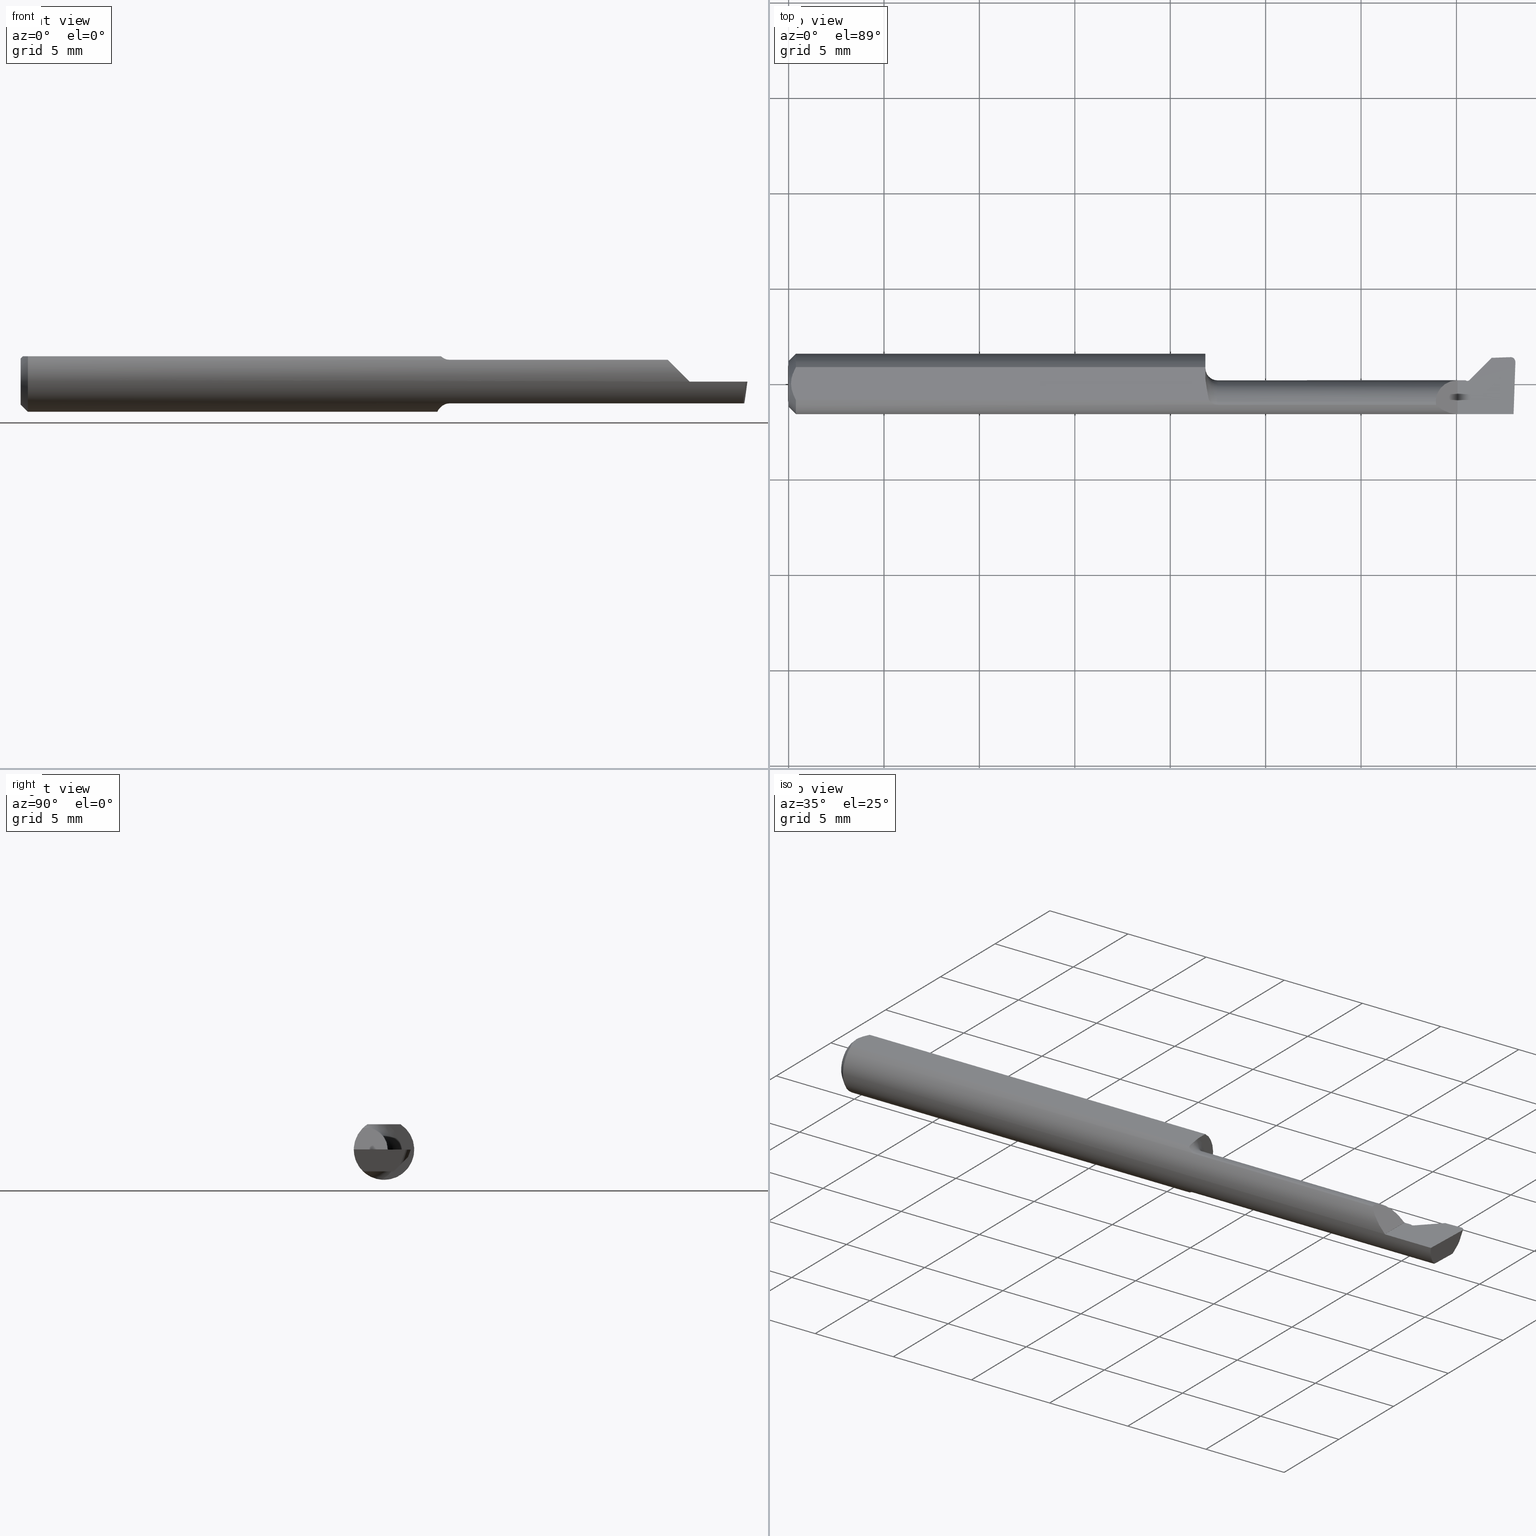
[diagram: canonical four-view strip — front | top / right | iso, engineering-drawing reading convention]
A machine part, canonical four-view strip (front | top / right | iso — engineering-drawing reading convention). The complete STEP part file that produces these views, byte-faithful:
ISO-10303-21;
HEADER;
FILE_DESCRIPTION (( 'STEP AP203' ),
    '1' );
FILE_NAME ('216816-BC120600.STEP',
    '2024-04-19T22:15:44',
    ( '' ),
    ( '' ),
    'SwSTEP 2.0',
    'SolidWorks 2022',
    '' );
FILE_SCHEMA (( 'CONFIG_CONTROL_DESIGN' ));
ENDSEC;

DATA;
#1 = CARTESIAN_POINT ( 'NONE',  ( 1.401350579081468650, 0.003486539450863538215, -0.01892342304111742715 ) ) ;
#2 = AXIS2_PLACEMENT_3D ( 'NONE', #528, #807, #124 ) ;
#3 = PRODUCT_DEFINITION_SHAPE ( 'NONE', 'NONE',  #478 ) ;
#4 = PERSON_AND_ORGANIZATION_ROLE ( 'classification_officer' ) ;
#5 = VERTEX_POINT ( 'NONE', #841 ) ;
#6 = ORIENTED_EDGE ( 'NONE', *, *, #202, .F. ) ;
#7 = CARTESIAN_POINT ( 'NONE',  ( 1.406065055639881489, 0.001120053682166154922, -0.02692395065594306580 ) ) ;
#8 = ORIENTED_EDGE ( 'NONE', *, *, #403, .F. ) ;
#9 = ORIENTED_EDGE ( 'NONE', *, *, #29, .F. ) ;
#10 = CARTESIAN_POINT ( 'NONE',  ( 0.8701006002414425344, -0.03734999999999997350, 0.04992494366546647994 ) ) ;
#11 = APPROVAL_STATUS ( 'not_yet_approved' ) ;
#12 = CARTESIAN_POINT ( 'NONE',  ( 1.450400819999999813, 0.05391795846824057326, -1.867474214418929896E-17 ) ) ;
#13 = ORIENTED_EDGE ( 'NONE', *, *, #15, .T. ) ;
#14 = CARTESIAN_POINT ( 'NONE',  ( 1.380000000000000115, 0.007649999999999997947, -1.868634782302818344E-17 ) ) ;
#15 = EDGE_CURVE ( 'NONE', #149, #734, #133, .T. ) ;
#16 = AXIS2_PLACEMENT_3D ( 'NONE', #185, #531, #314 ) ;
#17 = ADVANCED_BREP_SHAPE_REPRESENTATION ( '216816-BC120600', ( #629, #685 ), #861 ) ;
#18 = APPLICATION_PROTOCOL_DEFINITION ( 'international standard', 'config_control_design', 1994, #707 ) ;
#19 = DIRECTION ( 'NONE',  ( -0.000000000000000000, 0.000000000000000000, -1.000000000000000000 ) ) ;
#20 = AXIS2_PLACEMENT_3D ( 'NONE', #597, #254, #532 ) ;
#21 = EDGE_LOOP ( 'NONE', ( #639, #83, #530, #56, #252, #608 ) ) ;
#22 = CARTESIAN_POINT ( 'NONE',  ( 1.487928241463828183, 0.04975641210920479784, -0.01500914586507213176 ) ) ;
#23 = APPROVAL_STATUS ( 'not_yet_approved' ) ;
#24 = DIRECTION ( 'NONE',  ( 0.1263519090027680480, 0.3433542545449559946, 0.9306680670234870334 ) ) ;
#25 = ORIENTED_EDGE ( 'NONE', *, *, #316, .F. ) ;
#26 = DIRECTION ( 'NONE',  ( -1.000000000000000000, 0.000000000000000000, 0.000000000000000000 ) ) ;
#27 = EDGE_CURVE ( 'NONE', #596, #555, #626, .T. ) ;
#28 = DIRECTION ( 'NONE',  ( -0.1108231566318821637, -0.7048963575661799652, -0.7005992813613767245 ) ) ;
#29 = EDGE_CURVE ( 'NONE', #50, #550, #375, .T. ) ;
#30 = VERTEX_POINT ( 'NONE', #617 ) ;
#31 = CARTESIAN_POINT ( 'NONE',  ( 0.01500000000000106977, 0.03386738844375219992, 0.05235000000000000764 ) ) ;
#32 = VECTOR ( 'NONE', #206, 39.37007874015748854 ) ;
#33 = DIRECTION ( 'NONE',  ( 0.000000000000000000, 0.000000000000000000, 1.000000000000000000 ) ) ;
#34 = ORIENTED_EDGE ( 'NONE', *, *, #455, .T. ) ;
#35 = CIRCLE ( 'NONE', #778, 0.04734999999999873338 ) ;
#36 = CARTESIAN_POINT ( 'NONE',  ( 0.8600000000000000977, -0.03735000000000000125, 0.04499999999999999833 ) ) ;
#37 = DIRECTION ( 'NONE',  ( 0.000000000000000000, 0.000000000000000000, -1.000000000000000000 ) ) ;
#38 = ORIENTED_EDGE ( 'NONE', *, *, #84, .F. ) ;
#39 = DIRECTION ( 'NONE',  ( -0.000000000000000000, 0.000000000000000000, -1.000000000000000000 ) ) ;
#40 = VERTEX_POINT ( 'NONE', #282 ) ;
#41 = CARTESIAN_POINT ( 'NONE',  ( 1.493725782297394389, -0.06234999999999974590, -0.01700082242080195108 ) ) ;
#42 = LINE ( 'NONE', #192, #524 ) ;
#43 = EDGE_CURVE ( 'NONE', #50, #770, #424, .T. ) ;
#44 = LINE ( 'NONE', #319, #176 ) ;
#45 = AXIS2_PLACEMENT_3D ( 'NONE', #331, #257, #249 ) ;
#46 = EDGE_LOOP ( 'NONE', ( #474, #853, #219, #527, #38, #261, #360, #750 ) ) ;
#47 = APPROVAL_PERSON_ORGANIZATION ( #221, #129, #559 ) ;
#48 =( BOUNDED_CURVE ( )  B_SPLINE_CURVE ( 3, ( #565, #692, #292, #800 ),
 .UNSPECIFIED., .F., .T. ) 
 B_SPLINE_CURVE_WITH_KNOTS ( ( 4, 4 ),
 ( 4.720166836582523118, 6.283185307179586232 ),
 .UNSPECIFIED. ) 
 CURVE ( )  GEOMETRIC_REPRESENTATION_ITEM ( )  RATIONAL_B_SPLINE_CURVE ( ( 1.000000000000000000, 0.8065675430899293952, 0.8065675430899293952, 1.000000000000000000 ) ) 
 REPRESENTATION_ITEM ( '' )  );
#49 = PLANE ( 'NONE',  #433 ) ;
#50 = VERTEX_POINT ( 'NONE', #417 ) ;
#51 = CARTESIAN_POINT ( 'NONE',  ( 1.416018100948176706, -0.001828679599246675440, -0.04500000000000000527 ) ) ;
#52 = CARTESIAN_POINT ( 'NONE',  ( 1.470179879611684282, 0.05664999999999999203, -0.2428653909663854860 ) ) ;
#53 =( BOUNDED_CURVE ( )  B_SPLINE_CURVE ( 3, ( #259, #54, #891, #451 ),
 .UNSPECIFIED., .F., .F. ) 
 B_SPLINE_CURVE_WITH_KNOTS ( ( 4, 4 ),
 ( 4.718002482199790570, 5.508610201562717634 ),
 .UNSPECIFIED. ) 
 CURVE ( )  GEOMETRIC_REPRESENTATION_ITEM ( )  RATIONAL_B_SPLINE_CURVE ( ( 1.000000000000000000, 0.9485863960405191975, 0.9485863960405191975, 1.000000000000000000 ) ) 
 REPRESENTATION_ITEM ( '' )  );
#54 = CARTESIAN_POINT ( 'NONE',  ( 1.363125839995406485, -0.06225429351182320409, 0.01722416000459342164 ) ) ;
#55 = EDGE_CURVE ( 'NONE', #442, #394, #697, .T. ) ;
#56 = ORIENTED_EDGE ( 'NONE', *, *, #873, .F. ) ;
#57 = DIRECTION ( 'NONE',  ( 0.02467767077832642292, -0.7066760308408334135, 0.7071067811865490160 ) ) ;
#58 = FACE_OUTER_BOUND ( 'NONE', #698, .T. ) ;
#59 = VERTEX_POINT ( 'NONE', #214 ) ;
#60 = CIRCLE ( 'NONE', #103, 0.07000000000000000666 ) ;
#61 = FACE_OUTER_BOUND ( 'NONE', #46, .T. ) ;
#62 = DIRECTION ( 'NONE',  ( 0.4105645555054140416, 0.6520830831288185747, 0.6373573553822500237 ) ) ;
#63 = ORIENTED_EDGE ( 'NONE', *, *, #578, .T. ) ;
#64 = LINE ( 'NONE', #771, #865 ) ;
#65 = DIRECTION ( 'NONE',  ( 0.000000000000000000, 0.9381871857768088185, -0.3461283063319028352 ) ) ;
#66 = DIRECTION ( 'NONE',  ( 0.7071067811865429098, 8.659560562354989558E-17, 0.7071067811865521247 ) ) ;
#67 = VERTEX_POINT ( 'NONE', #12 ) ;
#68 = DIRECTION ( 'NONE',  ( 0.000000000000000000, -0.9825200508486990891, 0.1861567878973793000 ) ) ;
#69 = CARTESIAN_POINT ( 'NONE',  ( 1.489632428831576316, 0.05528795643703825202, -1.868634782302817419E-17 ) ) ;
#70 = EDGE_CURVE ( 'NONE', #442, #138, #269, .T. ) ;
#71 = CARTESIAN_POINT ( 'NONE',  ( 1.431304993552014126, 0.01776994983192032793, -0.04499999999999996364 ) ) ;
#72 = CARTESIAN_POINT ( 'NONE',  ( 1.491000998396268429, -0.04360836680053547382, -0.04456268444550840618 ) ) ;
#73 = FACE_OUTER_BOUND ( 'NONE', #439, .T. ) ;
#74 = LOCAL_TIME ( 15, 15, 44.00000000000000000, #423 ) ;
#75 = VECTOR ( 'NONE', #781, 39.37007874015748143 ) ;
#76 = VECTOR ( 'NONE', #640, 39.37007874015748854 ) ;
#77 = PERSON_AND_ORGANIZATION ( #878, #435 ) ;
#78 = CARTESIAN_POINT ( 'NONE',  ( 1.491093796476024469, -0.03944460584838484218, -0.04499999999999999833 ) ) ;
#79 = APPROVAL ( #23, 'UNSPECIFIED' ) ;
#80 = ORIENTED_EDGE ( 'NONE', *, *, #603, .F. ) ;
#81 = CARTESIAN_POINT ( 'NONE',  ( 0.01500000000000107150, -0.03386738844375219992, 0.05235000000000000764 ) ) ;
#82 = COORDINATED_UNIVERSAL_TIME_OFFSET ( 8, 0, .BEHIND. ) ;
#83 = ORIENTED_EDGE ( 'NONE', *, *, #147, .T. ) ;
#84 = EDGE_CURVE ( 'NONE', #596, #359, #48, .T. ) ;
#85 = EDGE_CURVE ( 'NONE', #293, #326, #486, .T. ) ;
#86 = CARTESIAN_POINT ( 'NONE',  ( 1.405450564255653845, 0.001419697021855626396, -0.02534245801915455468 ) ) ;
#87 = PERSON_AND_ORGANIZATION ( #878, #435 ) ;
#88 = DIRECTION ( 'NONE',  ( 0.7071067811865484609, 0.7071067811865464625, 0.000000000000000000 ) ) ;
#89 = ORIENTED_EDGE ( 'NONE', *, *, #882, .T. ) ;
#90 = CARTESIAN_POINT ( 'NONE',  ( 1.401984130307040388, 0.006221299368999757412, -3.414809992080329023E-17 ) ) ;
#91 = VECTOR ( 'NONE', #307, 39.37007874015748143 ) ;
#92 = CIRCLE ( 'NONE', #510, 0.02500000000000000486 ) ;
#93 = CARTESIAN_POINT ( 'NONE',  ( 1.495219055447697620, 0.03288246833425534366, -0.03212725622798096037 ) ) ;
#94 = ORIENTED_EDGE ( 'NONE', *, *, #186, .F. ) ;
#95 = CARTESIAN_POINT ( 'NONE',  ( 0.01500000000000106977, 0.000000000000000000, -0.06235000000000000264 ) ) ;
#96 = ADVANCED_FACE ( 'NONE', ( #299 ), #226, .T. ) ;
#97 = LINE ( 'NONE', #372, #702 ) ;
#98 = ORIENTED_EDGE ( 'NONE', *, *, #505, .T. ) ;
#99 = CARTESIAN_POINT ( 'NONE',  ( 1.335350000000000259, -0.03735000000000000125, 0.04499999999999999833 ) ) ;
#100 = DIRECTION ( 'NONE',  ( -1.000000000000000000, -0.000000000000000000, -0.000000000000000000 ) ) ;
#101 = VERTEX_POINT ( 'NONE', #173 ) ;
#102 = CARTESIAN_POINT ( 'NONE',  ( 1.335787315554491927, -0.04360836680053561953, 0.04456268444550823965 ) ) ;
#103 = AXIS2_PLACEMENT_3D ( 'NONE', #450, #888, #735 ) ;
#104 = DIRECTION ( 'NONE',  ( 0.9993908270190959842, 0.03489949670249422459, 0.000000000000000000 ) ) ;
#105 = ORIENTED_EDGE ( 'NONE', *, *, #575, .T. ) ;
#106 = AXIS2_PLACEMENT_3D ( 'NONE', #595, #821, #808 ) ;
#107 = LINE ( 'NONE', #541, #612 ) ;
#108 = ORIENTED_EDGE ( 'NONE', *, *, #662, .F. ) ;
#109 = CARTESIAN_POINT ( 'NONE',  ( 1.495813220813313693, -0.06235000000000000264, -2.641722387191573529E-17 ) ) ;
#110 = EDGE_CURVE ( 'NONE', #149, #370, #245, .T. ) ;
#111 = DIRECTION ( 'NONE',  ( 0.000000000000000000, -1.000000000000000000, 0.000000000000000000 ) ) ;
#112 = DIRECTION ( 'NONE',  ( -0.1830127018922091953, 0.1830127018922113047, 0.9659258262890718649 ) ) ;
#113 = VERTEX_POINT ( 'NONE', #93 ) ;
#114 = LINE ( 'NONE', #126, #804 ) ;
#115 = DIRECTION ( 'NONE',  ( -0.000000000000000000, 0.000000000000000000, 1.000000000000000000 ) ) ;
#116 = ORIENTED_EDGE ( 'NONE', *, *, #505, .F. ) ;
#117 = AXIS2_PLACEMENT_3D ( 'NONE', #168, #381, #580 ) ;
#118 = APPLICATION_PROTOCOL_DEFINITION ( 'international standard', 'config_control_design', 1994, #235 ) ;
#119 = AXIS2_PLACEMENT_3D ( 'NONE', #711, #296, #88 ) ;
#120 = CARTESIAN_POINT ( 'NONE',  ( 0.8850000000000001199, -0.03735000000000000125, 0.000000000000000000 ) ) ;
#121 = CARTESIAN_POINT ( 'NONE',  ( 1.489965954263643200, 0.05529378281360682740, -6.829619984160658046E-17 ) ) ;
#122 = ORIENTED_EDGE ( 'NONE', *, *, #391, .F. ) ;
#123 = LENGTH_MEASURE_WITH_UNIT ( LENGTH_MEASURE( 0.02539999999999999897 ), #815 );
#124 = DIRECTION ( 'NONE',  ( 0.000000000000000000, 0.000000000000000000, -1.000000000000000000 ) ) ;
#125 = ORIENTED_EDGE ( 'NONE', *, *, #85, .T. ) ;
#126 = CARTESIAN_POINT ( 'NONE',  ( -0.002138829261818616344, -0.002268725154947169326, -0.01500000000000000812 ) ) ;
#127 = CARTESIAN_POINT ( 'NONE',  ( 1.402482774987279468, 0.002744709503446783085, -0.02044830466687256459 ) ) ;
#128 = EDGE_LOOP ( 'NONE', ( #125, #823, #203, #94, #427, #737, #487, #341, #769, #201 ) ) ;
#129 = APPROVAL ( #11, 'UNSPECIFIED' ) ;
#130 = DIRECTION ( 'NONE',  ( 1.000000000000000000, -0.000000000000000000, -0.000000000000000000 ) ) ;
#131 = B_SPLINE_CURVE_WITH_KNOTS ( 'NONE', 3,
 ( #400, #824, #880, #396, #181, #678 ),
 .UNSPECIFIED., .F., .F.,
 ( 4, 2, 4 ),
 ( 0.0009343328417634784314, 0.001154766650079300282, 0.001375200458395122024 ),
 .UNSPECIFIED. ) ;
#132 = CARTESIAN_POINT ( 'NONE',  ( 0.8614076976283824294, -0.005335091224385434851, 0.05234999999999998682 ) ) ;
#133 = LINE ( 'NONE', #337, #160 ) ;
#134 = ORIENTED_EDGE ( 'NONE', *, *, #728, .F. ) ;
#135 = DIRECTION ( 'NONE',  ( 1.000000000000000000, -0.000000000000000000, -0.000000000000000000 ) ) ;
#136 = EDGE_CURVE ( 'NONE', #59, #550, #92, .T. ) ;
#137 = CARTESIAN_POINT ( 'NONE',  ( 0.8600000000000002087, 0.001792027575337490830, 0.05235000000000000764 ) ) ;
#138 = VERTEX_POINT ( 'NONE', #443 ) ;
#139 = DIRECTION ( 'NONE',  ( 0.000000000000000000, 0.000000000000000000, -1.000000000000000000 ) ) ;
#140 = ORIENTED_EDGE ( 'NONE', *, *, #211, .T. ) ;
#141 =( BOUNDED_CURVE ( )  B_SPLINE_CURVE ( 3, ( #817, #752, #543, #893 ),
 .UNSPECIFIED., .F., .F. ) 
 B_SPLINE_CURVE_WITH_KNOTS ( ( 4, 4 ),
 ( 3.909660172168312187, 4.677727690746868561 ),
 .UNSPECIFIED. ) 
 CURVE ( )  GEOMETRIC_REPRESENTATION_ITEM ( )  RATIONAL_B_SPLINE_CURVE ( ( 1.000000000000000000, 0.9514405870031137358, 0.9514405870031137358, 1.000000000000000000 ) ) 
 REPRESENTATION_ITEM ( '' )  );
#142 = ORIENTED_EDGE ( 'NONE', *, *, #412, .F. ) ;
#143 = CARTESIAN_POINT ( 'NONE',  ( 1.359132861531758607, -0.03735000000000000125, -1.868634782302817419E-17 ) ) ;
#144 = PRODUCT_DEFINITION_FORMATION_WITH_SPECIFIED_SOURCE ( 'ANY', '', #694, .NOT_KNOWN. ) ;
#145 = ADVANCED_FACE ( 'NONE', ( #725 ), #852, .F. ) ;
#146 = PERSON_AND_ORGANIZATION_ROLE ( 'design_supplier' ) ;
#147 = EDGE_CURVE ( 'NONE', #113, #326, #652, .T. ) ;
#148 = EDGE_LOOP ( 'NONE', ( #862, #779, #198, #764 ) ) ;
#149 = VERTEX_POINT ( 'NONE', #788 ) ;
#150 = LINE ( 'NONE', #570, #645 ) ;
#151 = ORIENTED_EDGE ( 'NONE', *, *, #603, .T. ) ;
#152 = ORIENTED_EDGE ( 'NONE', *, *, #15, .F. ) ;
#153 = CARTESIAN_POINT ( 'NONE',  ( 0.005000000000001204002, 6.414153026140964483E-18, 0.05235000000000000764 ) ) ;
#154 = DATE_TIME_ROLE ( 'classification_date' ) ;
#155 = CARTESIAN_POINT ( 'NONE',  ( 1.438074908711026278, 0.02453986499093256321, -0.04499999999999999833 ) ) ;
#156 = VERTEX_POINT ( 'NONE', #582 ) ;
#157 = EDGE_CURVE ( 'NONE', #113, #514, #169, .T. ) ;
#158 = LINE ( 'NONE', #869, #418 ) ;
#159 = CIRCLE ( 'NONE', #628, 0.04499999999999999833 ) ;
#160 = VECTOR ( 'NONE', #66, 39.37007874015748143 ) ;
#161 = SECURITY_CLASSIFICATION_LEVEL ( 'unclassified' ) ;
#162 = FACE_OUTER_BOUND ( 'NONE', #227, .T. ) ;
#163 = ORIENTED_EDGE ( 'NONE', *, *, #223, .F. ) ;
#164 = DIRECTION ( 'NONE',  ( -0.7071067811865503483, 0.000000000000000000, -0.7071067811865447972 ) ) ;
#165 = EDGE_CURVE ( 'NONE', #444, #848, #577, .T. ) ;
#166 = CARTESIAN_POINT ( 'NONE',  ( 0.009663423781324755740, -0.02320891702790696745, 0.05234999999999997988 ) ) ;
#167 = VERTEX_POINT ( 'NONE', #304 ) ;
#168 = CARTESIAN_POINT ( 'NONE',  ( 1.463881199612955264, -0.02497195268154293532, -0.1886707423341440204 ) ) ;
#169 = LINE ( 'NONE', #501, #421 ) ;
#170 = ORIENTED_EDGE ( 'NONE', *, *, #27, .T. ) ;
#171 = CARTESIAN_POINT ( 'NONE',  ( 1.487707183046955262, 0.04975784401906698656, -0.01500000000000000812 ) ) ;
#172 = VECTOR ( 'NONE', #705, 39.37007874015748143 ) ;
#173 = CARTESIAN_POINT ( 'NONE',  ( 1.487595957717763318, 0.04975395994498461871, -0.01500000000000000812 ) ) ;
#174 = ADVANCED_FACE ( 'NONE', ( #162 ), #431, .F. ) ;
#175 = EDGE_LOOP ( 'NONE', ( #539, #464, #790, #780 ) ) ;
#176 = VECTOR ( 'NONE', #675, 39.37007874015748143 ) ;
#177 = CARTESIAN_POINT ( 'NONE',  ( 1.409555900597997180, -0.01432411666052821504, -0.04499999999999999833 ) ) ;
#178 = CARTESIAN_POINT ( 'NONE',  ( 1.495813220813313693, -0.06235000000000000264, -2.641722387191573529E-17 ) ) ;
#179 = VERTEX_POINT ( 'NONE', #504 ) ;
#180 = CARTESIAN_POINT ( 'NONE',  ( 1.421371298906373148, 0.005936817904766414182, -0.04499999999999999833 ) ) ;
#181 = CARTESIAN_POINT ( 'NONE',  ( 0.8820351742589956912, -0.04360836680053546688, -0.04456268444550840618 ) ) ;
#182 = CARTESIAN_POINT ( 'NONE',  ( 1.489743654160768482, 0.05529184051112063375, -6.829619984160658046E-17 ) ) ;
#183 = ORIENTED_EDGE ( 'NONE', *, *, #851, .T. ) ;
#184 = ADVANCED_FACE ( 'NONE', ( #587 ), #793, .T. ) ;
#185 = CARTESIAN_POINT ( 'NONE',  ( 0.8850000000000001199, -0.03735000000000000125, 0.000000000000000000 ) ) ;
#186 = EDGE_CURVE ( 'NONE', #67, #383, #867, .T. ) ;
#187 = CARTESIAN_POINT ( 'NONE',  ( -0.002138829261818616344, -0.002268725154947169326, -0.01500000000000000812 ) ) ;
#188 = B_SPLINE_CURVE_WITH_KNOTS ( 'NONE', 3,
 ( #392, #382, #189, #663, #607, #255, #263, #312 ),
 .UNSPECIFIED., .F., .F.,
 ( 4, 2, 2, 4 ),
 ( 0.000000000000000000, 0.0004671664208817392157, 0.0007007496313226088507, 0.0009343328417634784314 ),
 .UNSPECIFIED. ) ;
#189 = CARTESIAN_POINT ( 'NONE',  ( 0.8606286076433863341, -0.01732626571922309469, -0.06019274667599959494 ) ) ;
#190 = ORIENTED_EDGE ( 'NONE', *, *, #575, .F. ) ;
#191 = VECTOR ( 'NONE', #856, 39.37007874015748854 ) ;
#192 = CARTESIAN_POINT ( 'NONE',  ( 0.8600000000000000977, 0.007649999999999989274, -1.868634782302817419E-17 ) ) ;
#193 = DIRECTION ( 'NONE',  ( 0.03279479952046962521, -0.9391201854309704222, 0.3420201433256700452 ) ) ;
#194 = EDGE_LOOP ( 'NONE', ( #256, #708, #712, #591, #301, #183 ) ) ;
#195 = DIRECTION ( 'NONE',  ( 1.000000000000000000, 0.000000000000000000, 0.000000000000000000 ) ) ;
#196 = CARTESIAN_POINT ( 'NONE',  ( 1.397039517213081172, 0.007649999999999997080, -0.002019801705302697210 ) ) ;
#197 = EDGE_CURVE ( 'NONE', #293, #499, #97, .T. ) ;
#198 = ORIENTED_EDGE ( 'NONE', *, *, #440, .F. ) ;
#199 = CARTESIAN_POINT ( 'NONE',  ( 1.491000998396268429, -0.04360836680053547382, -0.04456268444550840618 ) ) ;
#200 = CARTESIAN_POINT ( 'NONE',  ( 0.8667021453325344238, -0.02654967387527603154, 0.05235000000000002152 ) ) ;
#201 = ORIENTED_EDGE ( 'NONE', *, *, #197, .F. ) ;
#202 = EDGE_CURVE ( 'NONE', #734, #567, #218, .T. ) ;
#203 = ORIENTED_EDGE ( 'NONE', *, *, #228, .T. ) ;
#204 = CARTESIAN_POINT ( 'NONE',  ( 1.493745783007409011, 0.04963775978866270117, -0.01533075517774319836 ) ) ;
#205 = CARTESIAN_POINT ( 'NONE',  ( 1.398223997914590067, 0.006591716029849268958, -0.009896438192275340204 ) ) ;
#206 = DIRECTION ( 'NONE',  ( -0.1830127018922091675, 0.1830127018922112492, 0.9659258262890716429 ) ) ;
#207 = ORIENTED_EDGE ( 'NONE', *, *, #70, .F. ) ;
#208 = DIRECTION ( 'NONE',  ( 0.000000000000000000, 0.000000000000000000, 1.000000000000000000 ) ) ;
#209 = DIRECTION ( 'NONE',  ( 0.000000000000000000, -1.000000000000000000, 0.000000000000000000 ) ) ;
#210 = LINE ( 'NONE', #143, #172 ) ;
#211 = EDGE_CURVE ( 'NONE', #370, #149, #35, .T. ) ;
#212 = ADVANCED_FACE ( 'NONE', ( #590 ), #870, .T. ) ;
#213 = CALENDAR_DATE ( 2024, 19, 4 ) ;
#214 = CARTESIAN_POINT ( 'NONE',  ( 0.8850000000000001199, -0.03735000000000000125, 0.04499999999999999833 ) ) ;
#215 = ORIENTED_EDGE ( 'NONE', *, *, #55, .T. ) ;
#216 = CARTESIAN_POINT ( 'NONE',  ( 1.408436385340512631, 0.0005749558626260063655, -0.03150881040621043849 ) ) ;
#217 = AXIS2_PLACEMENT_3D ( 'NONE', #574, #164, #225 ) ;
#218 = B_SPLINE_CURVE_WITH_KNOTS ( 'NONE', 3,
 ( #236, #860, #232, #166, #516, #376 ),
 .UNSPECIFIED., .F., .F.,
 ( 4, 2, 4 ),
 ( 0.003138065481210465350, 0.003587221268396009223, 0.004036377055581553096 ),
 .UNSPECIFIED. ) ;
#219 = ORIENTED_EDGE ( 'NONE', *, *, #651, .T. ) ;
#220 = CARTESIAN_POINT ( 'NONE',  ( -0.001091844360743987434, -0.03225044996552016430, -0.04499999999999999140 ) ) ;
#221 = PERSON_AND_ORGANIZATION ( #878, #435 ) ;
#222 = CARTESIAN_POINT ( 'NONE',  ( 1.471069375019570913, -0.03274293919889822990, -0.2100061389505829268 ) ) ;
#223 = EDGE_CURVE ( 'NONE', #555, #770, #53, .T. ) ;
#224 = ORIENTED_EDGE ( 'NONE', *, *, #43, .F. ) ;
#225 = DIRECTION ( 'NONE',  ( -0.7071067811865446862, 0.000000000000000000, 0.7071067811865502373 ) ) ;
#226 = CYLINDRICAL_SURFACE ( 'NONE', #761, 0.04499999999999999833 ) ;
#227 = EDGE_LOOP ( 'NONE', ( #644, #493, #534, #722, #142, #742 ) ) ;
#228 = EDGE_CURVE ( 'NONE', #683, #383, #511, .T. ) ;
#229 = CARTESIAN_POINT ( 'NONE',  ( 0.005000000000001206604, 0.005922407101183814991, 0.05235000000000000764 ) ) ;
#230 = CIRCLE ( 'NONE', #507, 0.06235000000000000264 ) ;
#231 = VECTOR ( 'NONE', #743, 39.37007874015748143 ) ;
#232 = CARTESIAN_POINT ( 'NONE',  ( 0.006072086686447879418, -0.01191816614558190157, 0.05235000000000002152 ) ) ;
#233 = ORIENTED_EDGE ( 'NONE', *, *, #758, .T. ) ;
#234 = CARTESIAN_POINT ( 'NONE',  ( 1.405450564255653845, 0.001419697021855626396, -0.02534245801915455468 ) ) ;
#235 = APPLICATION_CONTEXT ( 'configuration controlled 3d designs of mechanical parts and assemblies' ) ;
#236 = CARTESIAN_POINT ( 'NONE',  ( 0.005000000000001204002, 6.414153026140964483E-18, 0.05235000000000000764 ) ) ;
#237 = ORIENTED_EDGE ( 'NONE', *, *, #526, .F. ) ;
#238 = DIRECTION ( 'NONE',  ( 0.000000000000000000, 0.000000000000000000, -1.000000000000000000 ) ) ;
#239 = EDGE_CURVE ( 'NONE', #567, #680, #895, .T. ) ;
#240 = EDGE_CURVE ( 'NONE', #370, #680, #107, .T. ) ;
#241 = CARTESIAN_POINT ( 'NONE',  ( 1.500000000000000222, 0.000000000000000000, 0.000000000000000000 ) ) ;
#242 = ORIENTED_EDGE ( 'NONE', *, *, #295, .T. ) ;
#243 = DIRECTION ( 'NONE',  ( 0.000000000000000000, 0.000000000000000000, -1.000000000000000000 ) ) ;
#244 = DIRECTION ( 'NONE',  ( 0.000000000000000000, -0.3422042129537803956, -0.9396256045024974357 ) ) ;
#245 = CIRCLE ( 'NONE', #393, 0.04734999999999873338 ) ;
#246 = VERTEX_POINT ( 'NONE', #537 ) ;
#247 = AXIS2_PLACEMENT_3D ( 'NONE', #546, #135, #413 ) ;
#248 = DIRECTION ( 'NONE',  ( 1.000000000000000000, 0.000000000000000000, 0.000000000000000000 ) ) ;
#249 = DIRECTION ( 'NONE',  ( 0.000000000000000000, 0.000000000000000000, 1.000000000000000000 ) ) ;
#250 = CARTESIAN_POINT ( 'NONE',  ( 1.397066040902762429, 0.007649999999999996213, -1.936423210115213672E-17 ) ) ;
#251 = EDGE_CURVE ( 'NONE', #138, #514, #875, .T. ) ;
#252 = ORIENTED_EDGE ( 'NONE', *, *, #70, .T. ) ;
#253 = CARTESIAN_POINT ( 'NONE',  ( 1.380000000000000115, 0.07629532499999999717, -1.868634782302818344E-17 ) ) ;
#254 = DIRECTION ( 'NONE',  ( 1.000000000000000000, 0.000000000000000000, 0.000000000000000000 ) ) ;
#255 = CARTESIAN_POINT ( 'NONE',  ( 0.8665658476514228603, -0.03317735511194547932, -0.05286449629598390099 ) ) ;
#256 = ORIENTED_EDGE ( 'NONE', *, *, #635, .T. ) ;
#257 = DIRECTION ( 'NONE',  ( -1.000000000000000000, -0.000000000000000000, -0.000000000000000000 ) ) ;
#258 =( BOUNDED_CURVE ( )  B_SPLINE_CURVE ( 3, ( #795, #714, #90, #723 ),
 .UNSPECIFIED., .F., .T. ) 
 B_SPLINE_CURVE_WITH_KNOTS ( ( 4, 4 ),
 ( 3.141592653589718509, 3.909660172168312187 ),
 .UNSPECIFIED. ) 
 CURVE ( )  GEOMETRIC_REPRESENTATION_ITEM ( )  RATIONAL_B_SPLINE_CURVE ( ( 1.000000000000000000, 0.9514405870031090728, 0.9514405870031090728, 1.000000000000000000 ) ) 
 REPRESENTATION_ITEM ( '' )  );
#259 = CARTESIAN_POINT ( 'NONE',  ( 1.380000000000000115, -0.06234901763460271723, 0.0003499999999996106052 ) ) ;
#260 = AXIS2_PLACEMENT_3D ( 'NONE', #484, #130, #139 ) ;
#261 = ORIENTED_EDGE ( 'NONE', *, *, #391, .T. ) ;
#262 = CARTESIAN_POINT ( 'NONE',  ( 1.436743920442024036, -0.02496105891026565576, -0.1914369744162747466 ) ) ;
#263 = CARTESIAN_POINT ( 'NONE',  ( 0.8681596223425047665, -0.03542442886268737379, -0.05136550777428175452 ) ) ;
#264 = ORIENTED_EDGE ( 'NONE', *, *, #239, .T. ) ;
#265 = CARTESIAN_POINT ( 'NONE',  ( 1.427035517385634167, 0.01350047366554051921, -0.04499999999999999833 ) ) ;
#266 = CARTESIAN_POINT ( 'NONE',  ( 0.8680556789433141462, -0.03511735049662948610, 0.05154134765263149176 ) ) ;
#267 = ADVANCED_FACE ( 'NONE', ( #749 ), #818, .F. ) ;
#268 = ORIENTED_EDGE ( 'NONE', *, *, #593, .F. ) ;
#269 =( BOUNDED_CURVE ( )  B_SPLINE_CURVE ( 3, ( #72, #904, #78, #286 ),
 .UNSPECIFIED., .F., .T. ) 
 B_SPLINE_CURVE_WITH_KNOTS ( ( 4, 4 ),
 ( 0.1395382827391957181, 0.2790653745353861570 ),
 .UNSPECIFIED. ) 
 CURVE ( )  GEOMETRIC_REPRESENTATION_ITEM ( )  RATIONAL_B_SPLINE_CURVE ( ( 1.000000000000000000, 0.9983783404263124606, 0.9983783404263124606, 1.000000000000000000 ) ) 
 REPRESENTATION_ITEM ( '' )  );
#270 = CARTESIAN_POINT ( 'NONE',  ( 1.404132861531662391, 0.002182026386792876912, -0.02149927649373543914 ) ) ;
#271 = DIRECTION ( 'NONE',  ( 0.000000000000000000, 0.000000000000000000, 1.000000000000000000 ) ) ;
#272 = ORIENTED_EDGE ( 'NONE', *, *, #470, .F. ) ;
#273 = TOROIDAL_SURFACE ( 'NONE', #352, 0.07000000000000000666, 0.02500000000000000139 ) ;
#274 = CC_DESIGN_SECURITY_CLASSIFICATION ( #760, ( #144 ) ) ;
#275 = DIRECTION ( 'NONE',  ( -0.1830127018922091953, 0.1830127018922113047, 0.9659258262890718649 ) ) ;
#276 = DIRECTION ( 'NONE',  ( 0.000000000000000000, 0.000000000000000000, 1.000000000000000000 ) ) ;
#277 = APPROVAL_DATE_TIME ( #554, #300 ) ;
#278 = ADVANCED_FACE ( 'NONE', ( #58 ), #332, .F. ) ;
#279 = EDGE_CURVE ( 'NONE', #40, #399, #682, .T. ) ;
#280 = ORIENTED_EDGE ( 'NONE', *, *, #110, .F. ) ;
#281 = LINE ( 'NONE', #220, #76 ) ;
#282 = CARTESIAN_POINT ( 'NONE',  ( 0.8600000000000000977, 0.03386738844375219992, 0.05235000000000000764 ) ) ;
#283 = VERTEX_POINT ( 'NONE', #250 ) ;
#284 = DIRECTION ( 'NONE',  ( -1.000000000000000000, -0.000000000000000000, -0.000000000000000000 ) ) ;
#285 = PERSON_AND_ORGANIZATION ( #878, #435 ) ;
#286 = CARTESIAN_POINT ( 'NONE',  ( 1.491167491032077352, -0.03735000000000000125, -0.04499999999999999833 ) ) ;
#287 = CARTESIAN_POINT ( 'NONE',  ( 1.380000000000000115, 0.000000000000000000, 0.000000000000000000 ) ) ;
#288 = CIRCLE ( 'NONE', #802, 0.04499999999999999833 ) ;
#289 = VECTOR ( 'NONE', #843, 39.37007874015748143 ) ;
#290 = ADVANCED_FACE ( 'NONE', ( #462 ), #457, .F. ) ;
#291 = AXIS2_PLACEMENT_3D ( 'NONE', #329, #112, #533 ) ;
#292 = CARTESIAN_POINT ( 'NONE',  ( 1.335350000000000259, -0.01115188827315669734, 0.04500000000000000527 ) ) ;
#293 = VERTEX_POINT ( 'NONE', #178 ) ;
#294 = CARTESIAN_POINT ( 'NONE',  ( 1.404522894809584477, 0.001919046709937865429, -0.02279920940240189389 ) ) ;
#295 = EDGE_CURVE ( 'NONE', #773, #5, #733, .T. ) ;
#296 = DIRECTION ( 'NONE',  ( 0.6830127018922208526, -0.6830127018922228510, 0.2588190451025079719 ) ) ;
#297 = ORIENTED_EDGE ( 'NONE', *, *, #412, .T. ) ;
#298 = FACE_OUTER_BOUND ( 'NONE', #826, .T. ) ;
#299 = FACE_OUTER_BOUND ( 'NONE', #471, .T. ) ;
#300 = APPROVAL ( #576, 'UNSPECIFIED' ) ;
#301 = ORIENTED_EDGE ( 'NONE', *, *, #561, .T. ) ;
#302 = PLANE ( 'NONE',  #585 ) ;
#303 = VECTOR ( 'NONE', #477, 39.37007874015748143 ) ;
#304 = CARTESIAN_POINT ( 'NONE',  ( 1.450630002608786384, 0.04846308034758223943, -0.01500000000000000812 ) ) ;
#305 = EDGE_CURVE ( 'NONE', #634, #772, #188, .T. ) ;
#306 = ORIENTED_EDGE ( 'NONE', *, *, #29, .T. ) ;
#307 = DIRECTION ( 'NONE',  ( -1.000000000000000000, -0.000000000000000000, -0.000000000000000000 ) ) ;
#308 = EDGE_CURVE ( 'NONE', #167, #67, #44, .T. ) ;
#309 = DIRECTION ( 'NONE',  ( 0.000000000000000000, 0.000000000000000000, -1.000000000000000000 ) ) ;
#310 = ORIENTED_EDGE ( 'NONE', *, *, #882, .F. ) ;
#311 = CARTESIAN_POINT ( 'NONE',  ( 0.006070804952378125105, 0.01191432965610325981, 0.05234999999999998682 ) ) ;
#312 = CARTESIAN_POINT ( 'NONE',  ( 0.8701006002414425344, -0.03734999999999998044, -0.04992494366546647994 ) ) ;
#313 = ORIENTED_EDGE ( 'NONE', *, *, #165, .T. ) ;
#314 = DIRECTION ( 'NONE',  ( 0.000000000000000000, 0.000000000000000000, -1.000000000000000000 ) ) ;
#315 = CARTESIAN_POINT ( 'NONE',  ( 1.404132861531759202, 0.007649999999999964120, -2.390366994456230070E-16 ) ) ;
#316 = EDGE_CURVE ( 'NONE', #326, #683, #641, .T. ) ;
#317 = VECTOR ( 'NONE', #62, 39.37007874015748854 ) ;
#318 = ADVANCED_FACE ( 'NONE', ( #324 ), #397, .T. ) ;
#319 = CARTESIAN_POINT ( 'NONE',  ( 1.450350261105633587, 0.05512133340208198035, 0.003309079251331873209 ) ) ;
#320 = ORIENTED_EDGE ( 'NONE', *, *, #335, .T. ) ;
#321 = VECTOR ( 'NONE', #611, 39.37007874015748143 ) ;
#322 = CARTESIAN_POINT ( 'NONE',  ( 0.000000000000000000, 0.000000000000000000, 0.000000000000000000 ) ) ;
#323 = CARTESIAN_POINT ( 'NONE',  ( 0.8850000000000001199, -0.03735000000000000125, -0.07000000000000000666 ) ) ;
#324 = FACE_OUTER_BOUND ( 'NONE', #517, .T. ) ;
#325 = EDGE_CURVE ( 'NONE', #30, #283, #568, .T. ) ;
#326 = VERTEX_POINT ( 'NONE', #832 ) ;
#327 =( NAMED_UNIT ( * ) PLANE_ANGLE_UNIT ( ) SI_UNIT ( $, .RADIAN. ) );
#328 = DIRECTION ( 'NONE',  ( 0.1218693434051339730, 0.000000000000000000, 0.9925461516413236485 ) ) ;
#329 = CARTESIAN_POINT ( 'NONE',  ( 1.436743920442024036, -0.02496105891026565576, -0.1914369744162747466 ) ) ;
#330 = ORIENTED_EDGE ( 'NONE', *, *, #136, .F. ) ;
#331 = CARTESIAN_POINT ( 'NONE',  ( 0.8600000000000000977, -0.03735000000000000125, 0.000000000000000000 ) ) ;
#332 = CYLINDRICAL_SURFACE ( 'NONE', #291, 0.004999999999999839642 ) ;
#333 = ORIENTED_EDGE ( 'NONE', *, *, #147, .F. ) ;
#334 = CARTESIAN_POINT ( 'NONE',  ( 0.8850000000000001199, -0.03735000000000000125, 0.000000000000000000 ) ) ;
#335 = EDGE_CURVE ( 'NONE', #848, #167, #686, .T. ) ;
#336 = FACE_OUTER_BOUND ( 'NONE', #613, .T. ) ;
#337 = CARTESIAN_POINT ( 'NONE',  ( 0.01500000000000106977, 7.635672792683746671E-18, 0.06235000000000000264 ) ) ;
#338 = DIRECTION ( 'NONE',  ( 1.000000000000000000, 0.000000000000000000, 0.000000000000000000 ) ) ;
#339 = CARTESIAN_POINT ( 'NONE',  ( 0.8701006002414425344, -0.03734999999999997350, 0.04992494366546647994 ) ) ;
#340 = CARTESIAN_POINT ( 'NONE',  ( 1.440158983951485450, -0.02837612241972663901, -0.1901428791907622540 ) ) ;
#341 = ORIENTED_EDGE ( 'NONE', *, *, #497, .F. ) ;
#342 = ORIENTED_EDGE ( 'NONE', *, *, #578, .F. ) ;
#343 = CARTESIAN_POINT ( 'NONE',  ( 1.359132861531758829, -0.03735000000000023718, 8.838178613567333960E-17 ) ) ;
#344 = ADVANCED_FACE ( 'NONE', ( #336 ), #616, .F. ) ;
#345 = FACE_OUTER_BOUND ( 'NONE', #377, .T. ) ;
#346 = EDGE_CURVE ( 'NONE', #550, #156, #489, .T. ) ;
#347 = LINE ( 'NONE', #340, #32 ) ;
#348 = CARTESIAN_POINT ( 'NONE',  ( 0.8701006002414425344, -0.03734999999999997350, 0.04992494366546647994 ) ) ;
#349 = AXIS2_PLACEMENT_3D ( 'NONE', #899, #276, #691 ) ;
#350 = ORIENTED_EDGE ( 'NONE', *, *, #864, .T. ) ;
#351 = FACE_OUTER_BOUND ( 'NONE', #757, .T. ) ;
#352 = AXIS2_PLACEMENT_3D ( 'NONE', #495, #618, #699 ) ;
#353 = PERSON_AND_ORGANIZATION ( #878, #435 ) ;
#354 = ORIENTED_EDGE ( 'NONE', *, *, #594, .F. ) ;
#355 =( BOUNDED_CURVE ( )  B_SPLINE_CURVE ( 3, ( #99, #374, #654, #102 ),
 .UNSPECIFIED., .F., .F. ) 
 B_SPLINE_CURVE_WITH_KNOTS ( ( 4, 4 ),
 ( 0.000000000000000000, 0.1395270917961948520 ),
 .UNSPECIFIED. ) 
 CURVE ( )  GEOMETRIC_REPRESENTATION_ITEM ( )  RATIONAL_B_SPLINE_CURVE ( ( 1.000000000000000000, 0.9983783404263123495, 0.9983783404263123495, 1.000000000000000000 ) ) 
 REPRESENTATION_ITEM ( '' )  );
#356 = ORIENTED_EDGE ( 'NONE', *, *, #295, .F. ) ;
#357 = DIRECTION ( 'NONE',  ( -0.1263519090027680758, -0.3433542545449559946, -0.9306680670234869224 ) ) ;
#358 = APPROVAL_DATE_TIME ( #776, #129 ) ;
#359 = VERTEX_POINT ( 'NONE', #544 ) ;
#360 = ORIENTED_EDGE ( 'NONE', *, *, #497, .T. ) ;
#361 = CARTESIAN_POINT ( 'NONE',  ( 1.409414940364843050, 0.0006485635728690038659, -0.03293427650050035488 ) ) ;
#362 = B_SPLINE_CURVE_WITH_KNOTS ( 'NONE', 3,
 ( #825, #200, #766, #132, #137, #547 ),
 .UNSPECIFIED., .F., .F.,
 ( 4, 2, 4 ),
 ( 1.301042606982605321E-18, 0.0005545211062030423309, 0.001109042212406083361 ),
 .UNSPECIFIED. ) ;
#363 = COORDINATED_UNIVERSAL_TIME_OFFSET ( 8, 0, .BEHIND. ) ;
#364 = CARTESIAN_POINT ( 'NONE',  ( 0.8600000000000000977, -0.03735000000000000125, 0.000000000000000000 ) ) ;
#365 = EDGE_LOOP ( 'NONE', ( #152, #556, #809, #653, #6 ) ) ;
#366 = CYLINDRICAL_SURFACE ( 'NONE', #117, 0.009999999999999995004 ) ;
#367 = EDGE_CURVE ( 'NONE', #156, #399, #362, .T. ) ;
#368 = AXIS2_PLACEMENT_3D ( 'NONE', #401, #193, #244 ) ;
#369 = DIRECTION ( 'NONE',  ( 0.000000000000000000, 1.000000000000000000, -1.224646799147353207E-16 ) ) ;
#370 = VERTEX_POINT ( 'NONE', #414 ) ;
#371 = CARTESIAN_POINT ( 'NONE',  ( 1.405450564255653845, 0.001419697021855626396, -0.02534245801915455468 ) ) ;
#372 = CARTESIAN_POINT ( 'NONE',  ( 1.500000000000000222, -0.06234999999999998183, -1.868634782302817419E-17 ) ) ;
#373 = ORIENTED_EDGE ( 'NONE', *, *, #251, .F. ) ;
#374 = CARTESIAN_POINT ( 'NONE',  ( 1.335350000000000037, -0.03944460584838491157, 0.04499999999999999833 ) ) ;
#375 = B_SPLINE_CURVE_WITH_KNOTS ( 'NONE', 3,
 ( #638, #777, #560, #492, #622, #348 ),
 .UNSPECIFIED., .F., .F.,
 ( 4, 2, 4 ),
 ( 0.000000000000000000, 0.0002221506711813068277, 0.0004443013423626136554 ),
 .UNSPECIFIED. ) ;
#376 = CARTESIAN_POINT ( 'NONE',  ( 0.01500000000000107150, -0.03386738844375219992, 0.05235000000000000764 ) ) ;
#377 = EDGE_LOOP ( 'NONE', ( #330, #784, #892, #449, #310, #819, #632 ) ) ;
#378 = CARTESIAN_POINT ( 'NONE',  ( 1.489965954263643200, 0.05529378281360682740, -6.829619984160658046E-17 ) ) ;
#379 = DIRECTION ( 'NONE',  ( -1.000000000000000000, -0.000000000000000000, -0.000000000000000000 ) ) ;
#380 = ORIENTED_EDGE ( 'NONE', *, *, #796, .T. ) ;
#381 = DIRECTION ( 'NONE',  ( -0.1263519090027680480, -0.3433542545449559946, -0.9306680670234870334 ) ) ;
#382 = CARTESIAN_POINT ( 'NONE',  ( 0.8599999999999999867, -0.01131810390793744521, -0.06162862082500812633 ) ) ;
#383 = VERTEX_POINT ( 'NONE', #69 ) ;
#384 = CARTESIAN_POINT ( 'NONE',  ( 1.404132861531758980, -0.03253706263566859269, -0.04499999999999999833 ) ) ;
#385 = ADVANCED_FACE ( 'NONE', ( #345 ), #833, .F. ) ;
#386 = CARTESIAN_POINT ( 'NONE',  ( 0.8600000000000000977, 0.009120178609512577181, 0.05235000000000000764 ) ) ;
#387 = CARTESIAN_POINT ( 'NONE',  ( 0.8600000000000000977, 0.04793338999999999933, 0.05235000000000000764 ) ) ;
#388 = ORIENTED_EDGE ( 'NONE', *, *, #620, .F. ) ;
#389 = DIRECTION ( 'NONE',  ( 1.000000000000000000, 0.000000000000000000, 0.000000000000000000 ) ) ;
#390 = AXIS2_PLACEMENT_3D ( 'NONE', #636, #284, #765 ) ;
#391 = EDGE_CURVE ( 'NONE', #596, #573, #159, .T. ) ;
#392 = CARTESIAN_POINT ( 'NONE',  ( 0.8600000000000000977, -0.005121084337349387713, -0.06213933532964248385 ) ) ;
#393 = AXIS2_PLACEMENT_3D ( 'NONE', #655, #721, #309 ) ;
#394 = VERTEX_POINT ( 'NONE', #472 ) ;
#395 = MECHANICAL_CONTEXT ( 'NONE', #235, 'mechanical' ) ;
#396 = CARTESIAN_POINT ( 'NONE',  ( 0.8791455925653405279, -0.04295461213018610808, -0.04521820499593317416 ) ) ;
#397 = CYLINDRICAL_SURFACE ( 'NONE', #791, 0.009999999999999995004 ) ;
#398 = CC_DESIGN_DATE_AND_TIME_ASSIGNMENT ( #710, #154, ( #760 ) ) ;
#399 = VERTEX_POINT ( 'NONE', #386 ) ;
#400 = CARTESIAN_POINT ( 'NONE',  ( 0.8701006002414425344, -0.03734999999999998044, -0.04992494366546647994 ) ) ;
#401 = CARTESIAN_POINT ( 'NONE',  ( -0.002329364931677348552, 0.003187502546557361045, -1.867237049568557707E-17 ) ) ;
#402 = EDGE_LOOP ( 'NONE', ( #356, #599, #498, #542 ) ) ;
#403 = EDGE_CURVE ( 'NONE', #857, #772, #906, .T. ) ;
#404 = DIRECTION ( 'NONE',  ( 0.9993908270190960952, 0.03489949670248750080, -0.000000000000000000 ) ) ;
#405 = CARTESIAN_POINT ( 'NONE',  ( 1.192164530015231483, -0.3620471792233511676, -0.4162398729039317180 ) ) ;
#406 = AXIS2_PLACEMENT_3D ( 'NONE', #738, #248, #621 ) ;
#407 = ORIENTED_EDGE ( 'NONE', *, *, #836, .F. ) ;
#408 = VECTOR ( 'NONE', #896, 39.37007874015748854 ) ;
#409 = CARTESIAN_POINT ( 'NONE',  ( 0.8850000000000001199, -0.03735000000000000125, 0.000000000000000000 ) ) ;
#410 = CARTESIAN_POINT ( 'NONE',  ( 1.397066040902762429, 0.007649999999999996213, -1.936423210115213672E-17 ) ) ;
#411 = CARTESIAN_POINT ( 'NONE',  ( 1.427035517385634167, 0.01350047366554051921, -0.04499999999999999833 ) ) ;
#412 = EDGE_CURVE ( 'NONE', #156, #567, #740, .T. ) ;
#413 = DIRECTION ( 'NONE',  ( 0.000000000000000000, 0.000000000000000000, -1.000000000000000000 ) ) ;
#414 = CARTESIAN_POINT ( 'NONE',  ( 0.000000000000000000, 0.000000000000000000, -0.04734999999999873338 ) ) ;
#415 = ORIENTED_EDGE ( 'NONE', *, *, #223, .T. ) ;
#416 = CARTESIAN_POINT ( 'NONE',  ( 1.487928241463828183, 0.04975641210920479784, -0.01500914586507213176 ) ) ;
#417 = CARTESIAN_POINT ( 'NONE',  ( 0.8850000000000001199, -0.04360836680053548076, 0.04456268444550838537 ) ) ;
#418 = VECTOR ( 'NONE', #589, 39.37007874015748143 ) ;
#419 = ORIENTED_EDGE ( 'NONE', *, *, #197, .T. ) ;
#420 =( BOUNDED_CURVE ( )  B_SPLINE_CURVE ( 3, ( #416, #204, #689, #774 ),
 .UNSPECIFIED., .F., .F. ) 
 B_SPLINE_CURVE_WITH_KNOTS ( ( 4, 4 ),
 ( 3.110276852885541565, 4.671658568169831938 ),
 .UNSPECIFIED. ) 
 CURVE ( )  GEOMETRIC_REPRESENTATION_ITEM ( )  RATIONAL_B_SPLINE_CURVE ( ( 1.000000000000000000, 0.8069516682904578353, 0.8069516682904578353, 1.000000000000000000 ) ) 
 REPRESENTATION_ITEM ( '' )  );
#421 = VECTOR ( 'NONE', #28, 39.37007874015748143 ) ;
#422 = CARTESIAN_POINT ( 'NONE',  ( 1.493182801433054374, 0.01993077049758791922, -0.04499999999999999833 ) ) ;
#423 = COORDINATED_UNIVERSAL_TIME_OFFSET ( 8, 0, .BEHIND. ) ;
#424 = LINE ( 'NONE', #835, #289 ) ;
#425 = CARTESIAN_POINT ( 'NONE',  ( 1.409975071552849180, 0.0007243643861107196963, -0.03369381391925223984 ) ) ;
#426 = PERSON_AND_ORGANIZATION_ROLE ( 'creator' ) ;
#427 = ORIENTED_EDGE ( 'NONE', *, *, #635, .F. ) ;
#428 = ADVANCED_FACE ( 'NONE', ( #601 ), #673, .F. ) ;
#429 = FACE_OUTER_BOUND ( 'NONE', #897, .T. ) ;
#430 = DATE_AND_TIME ( #213, #610 ) ;
#431 = PLANE ( 'NONE',  #463 ) ;
#432 = ORIENTED_EDGE ( 'NONE', *, *, #136, .T. ) ;
#433 = AXIS2_PLACEMENT_3D ( 'NONE', #52, #614, #328 ) ;
#434 = CARTESIAN_POINT ( 'NONE',  ( 0.8701006002414425344, -0.03734999999999998044, -0.04992494366546647994 ) ) ;
#435 = ORGANIZATION ( 'UNSPECIFIED', 'UNSPECIFIED', '' ) ;
#436 = CIRCLE ( 'NONE', #687, 0.04499999999999999833 ) ;
#437 = CALENDAR_DATE ( 2024, 19, 4 ) ;
#438 = CARTESIAN_POINT ( 'NONE',  ( -1.163171555311665939, -0.03735000000000000125, -1.868634782302817419E-17 ) ) ;
#439 = EDGE_LOOP ( 'NONE', ( #656, #432, #9 ) ) ;
#440 = EDGE_CURVE ( 'NONE', #167, #101, #114, .T. ) ;
#441 = DIRECTION ( 'NONE',  ( -1.000000000000000000, -0.000000000000000000, -0.000000000000000000 ) ) ;
#442 = VERTEX_POINT ( 'NONE', #199 ) ;
#443 = CARTESIAN_POINT ( 'NONE',  ( 1.491167491032077352, -0.03735000000000000125, -0.04499999999999999833 ) ) ;
#444 = VERTEX_POINT ( 'NONE', #265 ) ;
#445 = CARTESIAN_POINT ( 'NONE',  ( 1.487595957717763318, 0.04975395994498461871, -0.01500000000000000812 ) ) ;
#446 = AXIS2_PLACEMENT_3D ( 'NONE', #409, #338, #901 ) ;
#447 = CONICAL_SURFACE ( 'NONE', #247, 0.06235000000000000264, 0.7853981633974548293 ) ;
#448 = DIRECTION ( 'NONE',  ( 0.03516126301284225319, 0.9993816516143076978, -0.000000000000000000 ) ) ;
#449 = ORIENTED_EDGE ( 'NONE', *, *, #305, .F. ) ;
#450 = CARTESIAN_POINT ( 'NONE',  ( 0.8600000000000000977, -0.03735000000000000125, 0.000000000000000000 ) ) ;
#451 = CARTESIAN_POINT ( 'NONE',  ( 1.335787315554491927, -0.04360836680053561953, 0.04456268444550823965 ) ) ;
#452 = ORIENTED_EDGE ( 'NONE', *, *, #730, .T. ) ;
#453 = B_SPLINE_CURVE_WITH_KNOTS ( 'NONE', 3,
 ( #630, #425, #361, #216, #905, #842, #7, #86 ),
 .UNSPECIFIED., .F., .F.,
 ( 4, 2, 2, 4 ),
 ( 0.001000499277393497675, 0.001067192144118884805, 0.001133885010844271936, 0.001267270744295045980 ),
 .UNSPECIFIED. ) ;
#454 = DIRECTION ( 'NONE',  ( 1.000000000000000000, 0.000000000000000000, 0.000000000000000000 ) ) ;
#455 = EDGE_CURVE ( 'NONE', #772, #394, #131, .T. ) ;
#456 = CARTESIAN_POINT ( 'NONE',  ( 1.500000000000000222, -0.03386738844375219298, 0.05235000000000000764 ) ) ;
#457 = PLANE ( 'NONE',  #460 ) ;
#458 = EDGE_LOOP ( 'NONE', ( #827, #579, #380, #163 ) ) ;
#459 = DIRECTION ( 'NONE',  ( 0.000000000000000000, -0.7073221891495888869, -0.7068913075831623205 ) ) ;
#460 = AXIS2_PLACEMENT_3D ( 'NONE', #805, #525, #115 ) ;
#461 = APPROVAL_PERSON_ORGANIZATION ( #87, #300, #855 ) ;
#462 = FACE_OUTER_BOUND ( 'NONE', #798, .T. ) ;
#463 = AXIS2_PLACEMENT_3D ( 'NONE', #513, #19, #520 ) ;
#464 = ORIENTED_EDGE ( 'NONE', *, *, #811, .T. ) ;
#465 = VECTOR ( 'NONE', #828, 39.37007874015748143 ) ;
#466 = CARTESIAN_POINT ( 'NONE',  ( 1.380000000000000115, -0.06235000000000000264, -1.868634782302818344E-17 ) ) ;
#467 = ADVANCED_FACE ( 'NONE', ( #684 ), #885, .F. ) ;
#468 = EDGE_CURVE ( 'NONE', #5, #283, #141, .T. ) ;
#469 = DIRECTION ( 'NONE',  ( 0.000000000000000000, 0.000000000000000000, 1.000000000000000000 ) ) ;
#470 = EDGE_CURVE ( 'NONE', #394, #857, #436, .T. ) ;
#471 = EDGE_LOOP ( 'NONE', ( #806, #190, #207, #215, #688 ) ) ;
#472 = CARTESIAN_POINT ( 'NONE',  ( 0.8850000000000001199, -0.04360836680053548076, -0.04456268444550838537 ) ) ;
#473 = CARTESIAN_POINT ( 'NONE',  ( 1.399739359179261067, 0.004929413038938467578, -0.01552075766390207355 ) ) ;
#474 = ORIENTED_EDGE ( 'NONE', *, *, #526, .T. ) ;
#475 = CARTESIAN_POINT ( 'NONE',  ( 1.399173535983480487, 0.005569146137534801769, -0.01366604519846065235 ) ) ;
#476 = AXIS2_PLACEMENT_3D ( 'NONE', #482, #454, #243 ) ;
#477 = DIRECTION ( 'NONE',  ( -1.000000000000000000, -0.000000000000000000, -0.000000000000000000 ) ) ;
#478 = PRODUCT_DEFINITION ( 'UNKNOWN', '', #144, #767 ) ;
#479 = VECTOR ( 'NONE', #783, 39.37007874015747433 ) ;
#480 = ADVANCED_FACE ( 'NONE', ( #666 ), #49, .F. ) ;
#481 = CARTESIAN_POINT ( 'NONE',  ( 0.8690275097363903134, -0.03628542728876194001, 0.05072137502513257568 ) ) ;
#482 = CARTESIAN_POINT ( 'NONE',  ( 0.8600000000000000977, 0.000000000000000000, 0.000000000000000000 ) ) ;
#483 = VERTEX_POINT ( 'NONE', #606 ) ;
#484 = CARTESIAN_POINT ( 'NONE',  ( 0.01500000000000106977, 0.000000000000000000, 0.000000000000000000 ) ) ;
#485 = ADVANCED_FACE ( 'NONE', ( #61 ), #890, .T. ) ;
#486 = LINE ( 'NONE', #658, #479 ) ;
#487 = ORIENTED_EDGE ( 'NONE', *, *, #468, .T. ) ;
#488 = LINE ( 'NONE', #709, #465 ) ;
#489 = B_SPLINE_CURVE_WITH_KNOTS ( 'NONE', 3,
 ( #339, #481, #266, #619 ),
 .UNSPECIFIED., .F., .F.,
 ( 4, 4 ),
 ( 0.0004443013423626136554, 0.0005742586930626218493 ),
 .UNSPECIFIED. ) ;
#490 = PRODUCT_RELATED_PRODUCT_CATEGORY ( 'detail', '', ( #694 ) ) ;
#491 = PERSON_AND_ORGANIZATION_ROLE ( 'creator' ) ;
#492 = CARTESIAN_POINT ( 'NONE',  ( 0.8741188397736041615, -0.04073407580541828221, 0.04722823953826817828 ) ) ;
#493 = ORIENTED_EDGE ( 'NONE', *, *, #730, .F. ) ;
#494 = AXIS2_PLACEMENT_3D ( 'NONE', #241, #753, #469 ) ;
#495 = CARTESIAN_POINT ( 'NONE',  ( 0.8850000000000001199, -0.03735000000000000125, 0.000000000000000000 ) ) ;
#496 = CALENDAR_DATE ( 2024, 19, 4 ) ;
#497 = EDGE_CURVE ( 'NONE', #573, #283, #42, .T. ) ;
#498 = ORIENTED_EDGE ( 'NONE', *, *, #325, .T. ) ;
#499 = VERTEX_POINT ( 'NONE', #466 ) ;
#500 = CARTESIAN_POINT ( 'NONE',  ( 1.404960070255596882, 0.001658875737859072863, -0.02408009263960704527 ) ) ;
#501 = CARTESIAN_POINT ( 'NONE',  ( 1.475412681909845203, -0.09309698386455506069, -0.1573387326803897535 ) ) ;
#502 = VERTEX_POINT ( 'NONE', #315 ) ;
#503 = CARTESIAN_POINT ( 'NONE',  ( 1.404132861531662391, 0.002182026386792876912, -0.02149927649373543914 ) ) ;
#504 = CARTESIAN_POINT ( 'NONE',  ( 1.487928241463828183, 0.04975641210920479784, -0.01500914586507213176 ) ) ;
#505 = EDGE_CURVE ( 'NONE', #680, #801, #859, .T. ) ;
#506 = ORIENTED_EDGE ( 'NONE', *, *, #620, .T. ) ;
#507 = AXIS2_PLACEMENT_3D ( 'NONE', #287, #838, #208 ) ;
#508 = ADVANCED_FACE ( 'NONE', ( #820 ), #609, .F. ) ;
#509 = CARTESIAN_POINT ( 'NONE',  ( 0.009665130484206614983, 0.02321408954762992777, 0.05235000000000001458 ) ) ;
#510 = AXIS2_PLACEMENT_3D ( 'NONE', #717, #369, #648 ) ;
#511 =( BOUNDED_CURVE ( )  B_SPLINE_CURVE ( 3, ( #736, #741, #182, #668 ),
 .UNSPECIFIED., .F., .F. ) 
 B_SPLINE_CURVE_WITH_KNOTS ( ( 4, 4 ),
 ( 3.471551771640462469, 3.504617554267190904 ),
 .UNSPECIFIED. ) 
 CURVE ( )  GEOMETRIC_REPRESENTATION_ITEM ( )  RATIONAL_B_SPLINE_CURVE ( ( 1.000000000000000000, 0.9999088899102779315, 0.9999088899102779315, 1.000000000000000000 ) ) 
 REPRESENTATION_ITEM ( '' )  );
#512 = VECTOR ( 'NONE', #552, 39.37007874015748143 ) ;
#513 = CARTESIAN_POINT ( 'NONE',  ( 0.000000000000000000, 0.04793338999999999933, 0.05235000000000000764 ) ) ;
#514 = VERTEX_POINT ( 'NONE', #422 ) ;
#515 = CARTESIAN_POINT ( 'NONE',  ( 1.335787315554491927, -0.04360836680053561953, 0.04456268444550823965 ) ) ;
#516 = CARTESIAN_POINT ( 'NONE',  ( 0.01215371382284716022, -0.02862736400430403172, 0.05235000000000000764 ) ) ;
#517 = EDGE_LOOP ( 'NONE', ( #660, #63, #837, #871 ) ) ;
#518 = DIRECTION ( 'NONE',  ( 1.000000000000000000, 0.000000000000000000, 0.000000000000000000 ) ) ;
#519 = EDGE_CURVE ( 'NONE', #383, #101, #150, .T. ) ;
#520 = DIRECTION ( 'NONE',  ( -1.000000000000000000, 0.000000000000000000, 0.000000000000000000 ) ) ;
#521 = ORIENTED_EDGE ( 'NONE', *, *, #110, .T. ) ;
#522 = CC_DESIGN_APPROVAL ( #300, ( #478 ) ) ;
#523 = CLOSED_SHELL ( 'NONE', ( #318, #278, #633, #385, #485, #184, #615, #212, #174, #720, #290, #690, #480, #467, #551, #659, #894, #96, #563, #344, #508, #145, #267, #428, #700 ) ) ;
#524 = VECTOR ( 'NONE', #540, 39.37007874015748143 ) ;
#525 = DIRECTION ( 'NONE',  ( -1.000000000000000000, 0.000000000000000000, -0.000000000000000000 ) ) ;
#526 = EDGE_CURVE ( 'NONE', #30, #246, #671, .T. ) ;
#527 = ORIENTED_EDGE ( 'NONE', *, *, #811, .F. ) ;
#528 = CARTESIAN_POINT ( 'NONE',  ( 0.01500000000000106977, 0.000000000000000000, 0.000000000000000000 ) ) ;
#529 = CARTESIAN_POINT ( 'NONE',  ( 1.436743920442024036, -0.02987365916450899356, -0.1905061904767878789 ) ) ;
#530 = ORIENTED_EDGE ( 'NONE', *, *, #85, .F. ) ;
#531 = DIRECTION ( 'NONE',  ( 1.000000000000000000, 0.000000000000000000, 0.000000000000000000 ) ) ;
#532 = DIRECTION ( 'NONE',  ( 0.000000000000000000, 0.000000000000000000, -1.000000000000000000 ) ) ;
#533 = DIRECTION ( 'NONE',  ( 0.000000000000000000, -0.9825200508486990891, 0.1861567878973793000 ) ) ;
#534 = ORIENTED_EDGE ( 'NONE', *, *, #728, .T. ) ;
#535 = DIRECTION ( 'NONE',  ( 0.000000000000000000, 0.000000000000000000, -1.000000000000000000 ) ) ;
#536 = DIMENSIONAL_EXPONENTS ( 1.000000000000000000, 0.000000000000000000, 0.000000000000000000, 0.000000000000000000, 0.000000000000000000, 0.000000000000000000, 0.000000000000000000 ) ;
#537 = CARTESIAN_POINT ( 'NONE',  ( 1.404132861531758980, -0.03735000000000000125, -0.04499999999999999833 ) ) ;
#538 = AXIS2_PLACEMENT_3D ( 'NONE', #797, #100, #33 ) ;
#539 = ORIENTED_EDGE ( 'NONE', *, *, #796, .F. ) ;
#540 = DIRECTION ( 'NONE',  ( 1.000000000000000000, 0.000000000000000000, 0.000000000000000000 ) ) ;
#541 = CARTESIAN_POINT ( 'NONE',  ( 0.01500000000000106977, 0.000000000000000000, -0.06235000000000000264 ) ) ;
#542 = ORIENTED_EDGE ( 'NONE', *, *, #468, .F. ) ;
#543 = CARTESIAN_POINT ( 'NONE',  ( 1.398058531733026966, 0.006721838814312643302, -3.414809992080329023E-17 ) ) ;
#544 = CARTESIAN_POINT ( 'NONE',  ( 1.335350000000000259, -0.03735000000000000125, 0.04499999999999999833 ) ) ;
#545 = CARTESIAN_POINT ( 'NONE',  ( 1.132066430765879650, -0.04360836680053548076, -0.04456268444550838537 ) ) ;
#546 = CARTESIAN_POINT ( 'NONE',  ( 0.01500000000000106977, 0.000000000000000000, 0.000000000000000000 ) ) ;
#547 = CARTESIAN_POINT ( 'NONE',  ( 0.8600000000000000977, 0.009120178609512577181, 0.05235000000000000764 ) ) ;
#548 = UNCERTAINTY_MEASURE_WITH_UNIT (LENGTH_MEASURE( 1.000000000000000082E-05 ), #768, 'distance_accuracy_value', 'NONE');
#549 = LOCAL_TIME ( 15, 15, 44.00000000000000000, #82 ) ;
#550 = VERTEX_POINT ( 'NONE', #10 ) ;
#551 = ADVANCED_FACE ( 'NONE', ( #562 ), #447, .T. ) ;
#552 = DIRECTION ( 'NONE',  ( -0.7071067811865514585, -0.5295332605668662262, 0.4686091398526257001 ) ) ;
#553 = CARTESIAN_POINT ( 'NONE',  ( 1.380000000000000115, -0.03735000000000000125, 0.000000000000000000 ) ) ;
#554 = DATE_AND_TIME ( #496, #789 ) ;
#555 = VERTEX_POINT ( 'NONE', #693 ) ;
#556 = ORIENTED_EDGE ( 'NONE', *, *, #211, .F. ) ;
#557 = CC_DESIGN_DATE_AND_TIME_ASSIGNMENT ( #706, #631, ( #478 ) ) ;
#558 = CARTESIAN_POINT ( 'NONE',  ( 0.8600000000000000977, -0.005121084337349387713, -0.06213933532964248385 ) ) ;
#559 = APPROVAL_ROLE ( '' ) ;
#560 = CARTESIAN_POINT ( 'NONE',  ( 0.8791574905217302005, -0.04295758307481487015, 0.04521523634767359717 ) ) ;
#561 = EDGE_CURVE ( 'NONE', #444, #483, #845, .T. ) ;
#562 = FACE_OUTER_BOUND ( 'NONE', #365, .T. ) ;
#563 = ADVANCED_FACE ( 'NONE', ( #351 ), #273, .F. ) ;
#564 = APPROVAL_ROLE ( '' ) ;
#565 = CARTESIAN_POINT ( 'NONE',  ( 1.380000000000000115, 0.007648638868303581952, 0.0003499999999997142008 ) ) ;
#566 = CONICAL_SURFACE ( 'NONE', #406, 0.04499999999999999833, 0.7853981633974427279 ) ;
#567 = VERTEX_POINT ( 'NONE', #81 ) ;
#568 = B_SPLINE_CURVE_WITH_KNOTS ( 'NONE', 3,
 ( #270, #903, #127, #1, #695, #473, #475, #205, #762, #756, #196, #410 ),
 .UNSPECIFIED., .F., .F.,
 ( 4, 2, 2, 2, 2, 4 ),
 ( 0.0001865874680042602584, 0.0002643423259053644743, 0.0003420971838064688257, 0.0004976068996086775286, 0.0006531166154108862315, 0.0008086263312130949343 ),
 .UNSPECIFIED. ) ;
#569 = AXIS2_PLACEMENT_3D ( 'NONE', #334, #195, #535 ) ;
#570 = CARTESIAN_POINT ( 'NONE',  ( 1.463553251617750517, -0.01558075082723324456, -0.1920909437674007125 ) ) ;
#571 = CALENDAR_DATE ( 2024, 19, 4 ) ;
#572 = DIRECTION ( 'NONE',  ( -1.000000000000000000, -0.000000000000000000, -0.000000000000000000 ) ) ;
#573 = VERTEX_POINT ( 'NONE', #14 ) ;
#574 = CARTESIAN_POINT ( 'NONE',  ( 1.328000000000000069, 0.04793338999999999933, 0.05235000000000000764 ) ) ;
#575 = EDGE_CURVE ( 'NONE', #138, #246, #64, .T. ) ;
#576 = APPROVAL_STATUS ( 'not_yet_approved' ) ;
#577 = LINE ( 'NONE', #155, #191 ) ;
#578 = EDGE_CURVE ( 'NONE', #683, #179, #488, .T. ) ;
#579 = ORIENTED_EDGE ( 'NONE', *, *, #84, .T. ) ;
#580 = DIRECTION ( 'NONE',  ( 0.000000000000000000, 0.9381871857768088185, -0.3461283063319028352 ) ) ;
#581 =( BOUNDED_CURVE ( )  B_SPLINE_CURVE ( 3, ( #810, #884, #41, #109 ),
 .UNSPECIFIED., .F., .T. ) 
 B_SPLINE_CURVE_WITH_KNOTS ( ( 4, 4 ),
 ( 0.4955097310814783329, 1.291730952259495524 ),
 .UNSPECIFIED. ) 
 CURVE ( )  GEOMETRIC_REPRESENTATION_ITEM ( )  RATIONAL_B_SPLINE_CURVE ( ( 1.000000000000000000, 0.9478634083065206051, 0.9478634083065206051, 1.000000000000000000 ) ) 
 REPRESENTATION_ITEM ( '' )  );
#582 = CARTESIAN_POINT ( 'NONE',  ( 0.8671801011883747412, -0.03386738844375219298, 0.05235000000000000764 ) ) ;
#583 = ORIENTED_EDGE ( 'NONE', *, *, #561, .F. ) ;
#584 = FACE_OUTER_BOUND ( 'NONE', #458, .T. ) ;
#585 = AXIS2_PLACEMENT_3D ( 'NONE', #799, #518, #650 ) ;
#586 = VECTOR ( 'NONE', #104, 39.37007874015748143 ) ;
#587 = FACE_OUTER_BOUND ( 'NONE', #175, .T. ) ;
#588 = ORIENTED_EDGE ( 'NONE', *, *, #157, .T. ) ;
#589 = DIRECTION ( 'NONE',  ( -1.000000000000000000, -0.000000000000000000, -0.000000000000000000 ) ) ;
#590 = FACE_OUTER_BOUND ( 'NONE', #876, .T. ) ;
#591 = ORIENTED_EDGE ( 'NONE', *, *, #165, .F. ) ;
#592 = CARTESIAN_POINT ( 'NONE',  ( 0.01215148319993553973, 0.02862325741844276225, 0.05235000000000002152 ) ) ;
#593 = EDGE_CURVE ( 'NONE', #483, #773, #453, .T. ) ;
#594 = EDGE_CURVE ( 'NONE', #499, #555, #230, .T. ) ;
#595 = CARTESIAN_POINT ( 'NONE',  ( 0.01500000000000106977, 0.000000000000000000, 0.000000000000000000 ) ) ;
#596 = VERTEX_POINT ( 'NONE', #850 ) ;
#597 = CARTESIAN_POINT ( 'NONE',  ( 0.000000000000000000, 0.000000000000000000, 0.000000000000000000 ) ) ;
#598 = CARTESIAN_POINT ( 'NONE',  ( 1.494444658729153552, 0.05579629183043362944, -0.04499999999999999833 ) ) ;
#599 = ORIENTED_EDGE ( 'NONE', *, *, #662, .T. ) ;
#600 = CARTESIAN_POINT ( 'NONE',  ( 1.407670515140359457, -0.01863805993257328097, -0.04499999999999999833 ) ) ;
#601 = FACE_OUTER_BOUND ( 'NONE', #664, .T. ) ;
#602 = CARTESIAN_POINT ( 'NONE',  ( 1.499580804065988371, 0.04473527655191909119, -1.866307231897750198E-17 ) ) ;
#603 = EDGE_CURVE ( 'NONE', #514, #848, #281, .T. ) ;
#604 = EDGE_LOOP ( 'NONE', ( #268, #583, #407, #237, #108 ) ) ;
#605 =( NAMED_UNIT ( * ) SI_UNIT ( $, .STERADIAN. ) SOLID_ANGLE_UNIT ( ) );
#606 = CARTESIAN_POINT ( 'NONE',  ( 1.410594570806962489, 0.001188290724796734399, -0.03410436437666802129 ) ) ;
#607 = CARTESIAN_POINT ( 'NONE',  ( 0.8639703683179056348, -0.02829598038873154184, -0.05563029170059014678 ) ) ;
#608 = ORIENTED_EDGE ( 'NONE', *, *, #251, .T. ) ;
#609 = CYLINDRICAL_SURFACE ( 'NONE', #744, 0.004999999999999839642 ) ;
#610 = LOCAL_TIME ( 15, 15, 44.00000000000000000, #847 ) ;
#611 = DIRECTION ( 'NONE',  ( 0.000000000000000000, -1.000000000000000000, 0.000000000000000000 ) ) ;
#612 = VECTOR ( 'NONE', #881, 39.37007874015748143 ) ;
#613 = EDGE_LOOP ( 'NONE', ( #313, #80, #373, #105, #718 ) ) ;
#614 = DIRECTION ( 'NONE',  ( -0.9919415193434454325, 0.03489949670244067020, 0.1217951038939312919 ) ) ;
#615 = ADVANCED_FACE ( 'NONE', ( #759 ), #624, .T. ) ;
#616 = PLANE ( 'NONE',  #349 ) ;
#617 = CARTESIAN_POINT ( 'NONE',  ( 1.404132861531662391, 0.002182026386792876912, -0.02149927649373543914 ) ) ;
#618 = DIRECTION ( 'NONE',  ( 1.000000000000000000, 0.000000000000000000, 0.000000000000000000 ) ) ;
#619 = CARTESIAN_POINT ( 'NONE',  ( 0.8671801011883747412, -0.03386738844375219298, 0.05235000000000000764 ) ) ;
#620 = EDGE_CURVE ( 'NONE', #179, #113, #420, .T. ) ;
#621 = DIRECTION ( 'NONE',  ( 0.000000000000000000, 0.000000000000000000, -1.000000000000000000 ) ) ;
#622 = CARTESIAN_POINT ( 'NONE',  ( 0.8719349541633377720, -0.03916979350186013814, 0.04856351424153122764 ) ) ;
#623 = DIRECTION ( 'NONE',  ( -1.000000000000000000, -0.000000000000000000, -0.000000000000000000 ) ) ;
#624 = CONICAL_SURFACE ( 'NONE', #260, 0.06235000000000000264, 0.7853981633974548293 ) ;
#625 = CARTESIAN_POINT ( 'NONE',  ( 1.404919186979362689, -0.02783052095688126615, -0.04499999999999999833 ) ) ;
#626 = LINE ( 'NONE', #763, #863 ) ;
#627 = VECTOR ( 'NONE', #24, 39.37007874015748143 ) ;
#628 = AXIS2_PLACEMENT_3D ( 'NONE', #553, #681, #898 ) ;
#629 = MANIFOLD_SOLID_BREP ( 'Fillet1', #523 ) ;
#630 = CARTESIAN_POINT ( 'NONE',  ( 1.410594570806962489, 0.001188290724796734399, -0.03410436437666802129 ) ) ;
#631 = DATE_TIME_ROLE ( 'creation_date' ) ;
#632 = ORIENTED_EDGE ( 'NONE', *, *, #346, .F. ) ;
#633 = ADVANCED_FACE ( 'NONE', ( #73 ), #829, .F. ) ;
#634 = VERTEX_POINT ( 'NONE', #558 ) ;
#635 = EDGE_CURVE ( 'NONE', #502, #67, #210, .T. ) ;
#636 = CARTESIAN_POINT ( 'NONE',  ( 1.404132861531758980, -0.03735000000000000125, 0.000000000000000000 ) ) ;
#637 = PERSON_AND_ORGANIZATION ( #878, #435 ) ;
#638 = CARTESIAN_POINT ( 'NONE',  ( 0.8850000000000001199, -0.04360836680053548076, 0.04456268444550838537 ) ) ;
#639 = ORIENTED_EDGE ( 'NONE', *, *, #157, .F. ) ;
#640 = DIRECTION ( 'NONE',  ( -0.9993908270190960952, -0.03489949670248749386, 0.000000000000000000 ) ) ;
#641 =( BOUNDED_CURVE ( )  B_SPLINE_CURVE ( 3, ( #602, #886, #813, #121 ),
 .UNSPECIFIED., .F., .F. ) 
 B_SPLINE_CURVE_WITH_KNOTS ( ( 4, 4 ),
 ( 1.910170056356179646, 3.471551771640462469 ),
 .UNSPECIFIED. ) 
 CURVE ( )  GEOMETRIC_REPRESENTATION_ITEM ( )  RATIONAL_B_SPLINE_CURVE ( ( 1.000000000000000000, 0.8069516682904596117, 0.8069516682904596117, 1.000000000000000000 ) ) 
 REPRESENTATION_ITEM ( '' )  );
#642 = COORDINATED_UNIVERSAL_TIME_OFFSET ( 8, 0, .BEHIND. ) ;
#643 = DIRECTION ( 'NONE',  ( 0.000000000000000000, 0.000000000000000000, 1.000000000000000000 ) ) ;
#644 = ORIENTED_EDGE ( 'NONE', *, *, #279, .F. ) ;
#645 = VECTOR ( 'NONE', #357, 39.37007874015748854 ) ;
#646 = CARTESIAN_POINT ( 'NONE',  ( 0.01500000000000106977, 0.03386738844375219992, 0.05235000000000000764 ) ) ;
#647 = APPROVAL_DATE_TIME ( #430, #79 ) ;
#648 = DIRECTION ( 'NONE',  ( 0.000000000000000000, 1.707404996040164265E-16, 1.000000000000000000 ) ) ;
#649 = ORIENTED_EDGE ( 'NONE', *, *, #864, .F. ) ;
#650 = DIRECTION ( 'NONE',  ( 0.000000000000000000, 0.000000000000000000, -1.000000000000000000 ) ) ;
#651 = EDGE_CURVE ( 'NONE', #857, #59, #288, .T. ) ;
#652 = LINE ( 'NONE', #222, #627 ) ;
#653 = ORIENTED_EDGE ( 'NONE', *, *, #239, .F. ) ;
#654 = CARTESIAN_POINT ( 'NONE',  ( 1.335496008627786724, -0.04153411659032912179, 0.04485399137221370708 ) ) ;
#655 = CARTESIAN_POINT ( 'NONE',  ( 0.000000000000000000, 0.000000000000000000, 0.000000000000000000 ) ) ;
#656 = ORIENTED_EDGE ( 'NONE', *, *, #902, .F. ) ;
#657 = CARTESIAN_POINT ( 'NONE',  ( 1.487817954388030550, 0.04975866148161948305, -0.01500304889947619812 ) ) ;
#658 = CARTESIAN_POINT ( 'NONE',  ( 1.500541969582406931, 0.07205429466916821180, -1.868634782302818344E-17 ) ) ;
#659 = ADVANCED_FACE ( 'NONE', ( #298 ), #302, .T. ) ;
#660 = ORIENTED_EDGE ( 'NONE', *, *, #228, .F. ) ;
#661 = CARTESIAN_POINT ( 'NONE',  ( 1.380000000000000115, 0.07629532499999999717, -1.868634782302818344E-17 ) ) ;
#662 = EDGE_CURVE ( 'NONE', #773, #30, #746, .T. ) ;
#663 = CARTESIAN_POINT ( 'NONE',  ( 0.8629699402100714511, -0.02567935165106224882, -0.05689511695062373503 ) ) ;
#664 = EDGE_LOOP ( 'NONE', ( #814, #233, #506, #588, #151, #320 ) ) ;
#665 = FACE_OUTER_BOUND ( 'NONE', #604, .T. ) ;
#666 = FACE_OUTER_BOUND ( 'NONE', #21, .T. ) ;
#667 = B_SPLINE_CURVE_WITH_KNOTS ( 'NONE', 3,
 ( #31, #592, #509, #311, #229, #786 ),
 .UNSPECIFIED., .F., .F.,
 ( 4, 2, 4 ),
 ( 0.002239757098154235813, 0.002688911289682350582, 0.003138065481210465350 ),
 .UNSPECIFIED. ) ;
#668 = CARTESIAN_POINT ( 'NONE',  ( 1.489632428831576316, 0.05528795643703825202, -1.868634782302817419E-17 ) ) ;
#669 = ORIENTED_EDGE ( 'NONE', *, *, #873, .T. ) ;
#670 = CARTESIAN_POINT ( 'NONE',  ( 0.8850000000000001199, -0.03734999999999999432, -0.04499999999999999833 ) ) ;
#671 = CIRCLE ( 'NONE', #390, 0.04499999999999999833 ) ;
#672 = LOCAL_TIME ( 15, 15, 44.00000000000000000, #642 ) ;
#673 = PLANE ( 'NONE',  #703 ) ;
#674 = CC_DESIGN_PERSON_AND_ORGANIZATION_ASSIGNMENT ( #751, #834, ( #694 ) ) ;
#675 = DIRECTION ( 'NONE',  ( -0.01435737162244886053, 0.3417262450595840995, 0.9396898633685328850 ) ) ;
#676 = ORIENTED_EDGE ( 'NONE', *, *, #240, .F. ) ;
#677 = CARTESIAN_POINT ( 'NONE',  ( 1.404132861531758980, -0.03735000000000000125, -0.04499999999999999833 ) ) ;
#678 = CARTESIAN_POINT ( 'NONE',  ( 0.8850000000000001199, -0.04360836680053548076, -0.04456268444550838537 ) ) ;
#679 = CARTESIAN_POINT ( 'NONE',  ( 1.463881199612955264, -0.02497195268154293532, -0.1886707423341440204 ) ) ;
#680 = VERTEX_POINT ( 'NONE', #95 ) ;
#681 = DIRECTION ( 'NONE',  ( -1.000000000000000000, -0.000000000000000000, -0.000000000000000000 ) ) ;
#682 = LINE ( 'NONE', #387, #321 ) ;
#683 = VERTEX_POINT ( 'NONE', #378 ) ;
#684 = FACE_OUTER_BOUND ( 'NONE', #883, .T. ) ;
#685 = AXIS2_PLACEMENT_3D ( 'NONE', #322, #271, #696 ) ;
#686 = LINE ( 'NONE', #405, #317 ) ;
#687 = AXIS2_PLACEMENT_3D ( 'NONE', #120, #389, #812 ) ;
#688 = ORIENTED_EDGE ( 'NONE', *, *, #470, .T. ) ;
#689 = CARTESIAN_POINT ( 'NONE',  ( 1.496757452012450695, 0.04266751839006807656, -0.02240185622611782015 ) ) ;
#690 = ADVANCED_FACE ( 'NONE', ( #584 ), #854, .F. ) ;
#691 = DIRECTION ( 'NONE',  ( 1.000000000000000000, 0.000000000000000000, -0.000000000000000000 ) ) ;
#692 = CARTESIAN_POINT ( 'NONE',  ( 1.353802680697162808, 0.007444875777094868592, 0.02654731930283741465 ) ) ;
#693 = CARTESIAN_POINT ( 'NONE',  ( 1.380000000000000115, -0.06234901763460271723, 0.0003499999999996106052 ) ) ;
#694 = PRODUCT ( '216816-BC120600', '216816-BC120600', '', ( #395 ) ) ;
#695 = CARTESIAN_POINT ( 'NONE',  ( 1.400906135831871291, 0.003863475228141761454, -0.01809171442854520459 ) ) ;
#696 = DIRECTION ( 'NONE',  ( 1.000000000000000000, 0.000000000000000000, 0.000000000000000000 ) ) ;
#697 = LINE ( 'NONE', #545, #303 ) ;
#698 = EDGE_LOOP ( 'NONE', ( #704, #242, #701, #844 ) ) ;
#699 = DIRECTION ( 'NONE',  ( 0.000000000000000000, 0.000000000000000000, -1.000000000000000000 ) ) ;
#700 = ADVANCED_FACE ( 'NONE', ( #429 ), #366, .T. ) ;
#701 = ORIENTED_EDGE ( 'NONE', *, *, #785, .F. ) ;
#702 = VECTOR ( 'NONE', #572, 39.37007874015748143 ) ;
#703 = AXIS2_PLACEMENT_3D ( 'NONE', #187, #57, #459 ) ;
#704 = ORIENTED_EDGE ( 'NONE', *, *, #593, .T. ) ;
#705 = DIRECTION ( 'NONE',  ( 0.7071067811865514585, 0.7071067811865435759, 0.000000000000000000 ) ) ;
#706 = DATE_AND_TIME ( #437, #74 ) ;
#707 = APPLICATION_CONTEXT ( 'configuration controlled 3d designs of mechanical parts and assemblies' ) ;
#708 = ORIENTED_EDGE ( 'NONE', *, *, #308, .F. ) ;
#709 = CARTESIAN_POINT ( 'NONE',  ( 1.463881199612955264, -0.01559008082377485137, -0.1921320253974630465 ) ) ;
#710 = DATE_AND_TIME ( #840, #672 ) ;
#711 = CARTESIAN_POINT ( 'NONE',  ( 1.440158983951485450, -0.02837612241972663901, -0.1901428791907622540 ) ) ;
#712 = ORIENTED_EDGE ( 'NONE', *, *, #335, .F. ) ;
#713 = CC_DESIGN_PERSON_AND_ORGANIZATION_ASSIGNMENT ( #782, #4, ( #760 ) ) ;
#714 = CARTESIAN_POINT ( 'NONE',  ( 1.403204700346071920, 0.006721838814312778611, -3.414809992080329023E-17 ) ) ;
#715 = B_SPLINE_CURVE_WITH_KNOTS ( 'NONE', 3,
 ( #677, #384, #625, #600, #177, #51, #180, #411 ),
 .UNSPECIFIED., .F., .F.,
 ( 4, 2, 2, 4 ),
 ( 0.001337264288869584187, 0.001696539769172737385, 0.002055815249475890366, 0.002774366210082206304 ),
 .UNSPECIFIED. ) ;
#716 = SHAPE_DEFINITION_REPRESENTATION ( #3, #17 ) ;
#717 = CARTESIAN_POINT ( 'NONE',  ( 0.8850000000000001199, -0.03734999999999999432, 0.07000000000000000666 ) ) ;
#718 = ORIENTED_EDGE ( 'NONE', *, *, #836, .T. ) ;
#719 = DIRECTION ( 'NONE',  ( 1.000000000000000000, 0.000000000000000000, 0.000000000000000000 ) ) ;
#720 = ADVANCED_FACE ( 'NONE', ( #732 ), #872, .F. ) ;
#721 = DIRECTION ( 'NONE',  ( -1.000000000000000000, -0.000000000000000000, -0.000000000000000000 ) ) ;
#722 = ORIENTED_EDGE ( 'NONE', *, *, #202, .T. ) ;
#723 = CARTESIAN_POINT ( 'NONE',  ( 1.400648961908515844, 0.006221299368999729656, -3.414809992080329023E-17 ) ) ;
#724 = CC_DESIGN_PERSON_AND_ORGANIZATION_ASSIGNMENT ( #353, #491, ( #144 ) ) ;
#725 = FACE_OUTER_BOUND ( 'NONE', #194, .T. ) ;
#726 = ORIENTED_EDGE ( 'NONE', *, *, #279, .T. ) ;
#727 = LINE ( 'NONE', #36, #91 ) ;
#728 = EDGE_CURVE ( 'NONE', #801, #734, #667, .T. ) ;
#729 = CARTESIAN_POINT ( 'NONE',  ( 0.000000000000000000, 0.000000000000000000, 0.000000000000000000 ) ) ;
#730 = EDGE_CURVE ( 'NONE', #801, #40, #792, .T. ) ;
#731 = ORIENTED_EDGE ( 'NONE', *, *, #594, .T. ) ;
#732 = FACE_OUTER_BOUND ( 'NONE', #128, .T. ) ;
#733 = LINE ( 'NONE', #529, #408 ) ;
#734 = VERTEX_POINT ( 'NONE', #153 ) ;
#735 = DIRECTION ( 'NONE',  ( 0.000000000000000000, 9.146812478786594242E-16, -1.000000000000000000 ) ) ;
#736 = CARTESIAN_POINT ( 'NONE',  ( 1.489965954263643200, 0.05529378281360682740, -6.829619984160658046E-17 ) ) ;
#737 = ORIENTED_EDGE ( 'NONE', *, *, #785, .T. ) ;
#738 = CARTESIAN_POINT ( 'NONE',  ( 1.404132861531758980, -0.03735000000000000125, 0.000000000000000000 ) ) ;
#739 = EDGE_CURVE ( 'NONE', #246, #857, #158, .T. ) ;
#740 = LINE ( 'NONE', #456, #748 ) ;
#741 = CARTESIAN_POINT ( 'NONE',  ( 1.489854839434891165, 0.05529378281360683434, -6.829619984160658046E-17 ) ) ;
#742 = ORIENTED_EDGE ( 'NONE', *, *, #367, .T. ) ;
#743 = DIRECTION ( 'NONE',  ( -0.000000000000000000, 1.000000000000000000, -0.000000000000000000 ) ) ;
#744 = AXIS2_PLACEMENT_3D ( 'NONE', #262, #275, #68 ) ;
#745 = CIRCLE ( 'NONE', #16, 0.04499999999999999833 ) ;
#746 = B_SPLINE_CURVE_WITH_KNOTS ( 'NONE', 3,
 ( #234, #500, #294, #503 ),
 .UNSPECIFIED., .F., .F.,
 ( 4, 4 ),
 ( 0.001267270744295045980, 0.001373740751247302027 ),
 .UNSPECIFIED. ) ;
#747 = DIRECTION ( 'NONE',  ( 0.000000000000000000, 0.000000000000000000, -1.000000000000000000 ) ) ;
#748 = VECTOR ( 'NONE', #755, 39.37007874015748143 ) ;
#749 = FACE_OUTER_BOUND ( 'NONE', #148, .T. ) ;
#750 = ORIENTED_EDGE ( 'NONE', *, *, #325, .F. ) ;
#751 = PERSON_AND_ORGANIZATION ( #878, #435 ) ;
#752 = CARTESIAN_POINT ( 'NONE',  ( 1.399313793509991521, 0.006221299368999712309, -3.414809992080329023E-17 ) ) ;
#753 = DIRECTION ( 'NONE',  ( -1.000000000000000000, -0.000000000000000000, -0.000000000000000000 ) ) ;
#754 = ORIENTED_EDGE ( 'NONE', *, *, #346, .T. ) ;
#755 = DIRECTION ( 'NONE',  ( -1.000000000000000000, -0.000000000000000000, -0.000000000000000000 ) ) ;
#756 = CARTESIAN_POINT ( 'NONE',  ( 1.397257562772187045, 0.007511563477121007380, -0.004045391895746219130 ) ) ;
#757 = EDGE_LOOP ( 'NONE', ( #8, #272, #794 ) ) ;
#758 = EDGE_CURVE ( 'NONE', #101, #179, #831, .T. ) ;
#759 = FACE_OUTER_BOUND ( 'NONE', #849, .T. ) ;
#760 = SECURITY_CLASSIFICATION ( '', '', #161 ) ;
#761 = AXIS2_PLACEMENT_3D ( 'NONE', #364, #441, #643 ) ;
#762 = CARTESIAN_POINT ( 'NONE',  ( 1.397843281186097908, 0.006982471387518607991, -0.007972267800116273478 ) ) ;
#763 = CARTESIAN_POINT ( 'NONE',  ( 1.380000000000000115, 0.07629532499999999717, 0.0003499999999997142008 ) ) ;
#764 = ORIENTED_EDGE ( 'NONE', *, *, #308, .T. ) ;
#765 = DIRECTION ( 'NONE',  ( 0.000000000000000000, 0.000000000000000000, 1.000000000000000000 ) ) ;
#766 = CARTESIAN_POINT ( 'NONE',  ( 0.8647496609455294081, -0.01951404886546227735, 0.05235000000000001458 ) ) ;
#767 = DESIGN_CONTEXT ( 'detailed design', #707, 'design' ) ;
#768 =( CONVERSION_BASED_UNIT ( 'INCH', #123 ) LENGTH_UNIT ( ) NAMED_UNIT ( #536 ) );
#769 = ORIENTED_EDGE ( 'NONE', *, *, #822, .F. ) ;
#770 = VERTEX_POINT ( 'NONE', #515 ) ;
#771 = CARTESIAN_POINT ( 'NONE',  ( 1.499964773701958798, -0.03735000000000000125, -0.04499999999999999833 ) ) ;
#772 = VERTEX_POINT ( 'NONE', #434 ) ;
#773 = VERTEX_POINT ( 'NONE', #371 ) ;
#774 = CARTESIAN_POINT ( 'NONE',  ( 1.495219055447697620, 0.03288246833425534366, -0.03212725622798096037 ) ) ;
#775 = CC_DESIGN_APPROVAL ( #79, ( #760 ) ) ;
#776 = DATE_AND_TIME ( #571, #549 ) ;
#777 = CARTESIAN_POINT ( 'NONE',  ( 0.8820249534799456947, -0.04360836680053547382, 0.04456268444550839231 ) ) ;
#778 = AXIS2_PLACEMENT_3D ( 'NONE', #729, #379, #37 ) ;
#779 = ORIENTED_EDGE ( 'NONE', *, *, #519, .T. ) ;
#780 = ORIENTED_EDGE ( 'NONE', *, *, #43, .T. ) ;
#781 = DIRECTION ( 'NONE',  ( 1.000000000000000000, 0.000000000000000000, 0.000000000000000000 ) ) ;
#782 = PERSON_AND_ORGANIZATION ( #878, #435 ) ;
#783 = DIRECTION ( 'NONE',  ( 0.03516126301284226707, 0.9993816516143079198, -8.514622150947768447E-19 ) ) ;
#784 = ORIENTED_EDGE ( 'NONE', *, *, #651, .F. ) ;
#785 = EDGE_CURVE ( 'NONE', #502, #5, #258, .T. ) ;
#786 = CARTESIAN_POINT ( 'NONE',  ( 0.005000000000001204002, 6.414153026140964483E-18, 0.05235000000000000764 ) ) ;
#787 = AXIS2_PLACEMENT_3D ( 'NONE', #323, #111, #747 ) ;
#788 = CARTESIAN_POINT ( 'NONE',  ( 0.000000000000000000, 6.717187693323156762E-18, 0.04734999999999873338 ) ) ;
#789 = LOCAL_TIME ( 15, 15, 44.00000000000000000, #363 ) ;
#790 = ORIENTED_EDGE ( 'NONE', *, *, #902, .T. ) ;
#791 = AXIS2_PLACEMENT_3D ( 'NONE', #679, #839, #65 ) ;
#792 = LINE ( 'NONE', #866, #75 ) ;
#793 = CYLINDRICAL_SURFACE ( 'NONE', #538, 0.04499999999999999833 ) ;
#794 = ORIENTED_EDGE ( 'NONE', *, *, #455, .F. ) ;
#795 = CARTESIAN_POINT ( 'NONE',  ( 1.404132861531759202, 0.007649999999999964120, -2.390366994456230070E-16 ) ) ;
#796 = EDGE_CURVE ( 'NONE', #359, #770, #355, .T. ) ;
#797 = CARTESIAN_POINT ( 'NONE',  ( 0.8600000000000000977, -0.03735000000000000125, 0.000000000000000000 ) ) ;
#798 = EDGE_LOOP ( 'NONE', ( #122, #170, #354, #868 ) ) ;
#799 = CARTESIAN_POINT ( 'NONE',  ( 0.8600000000000000977, 0.1076500000000000096, 0.000000000000000000 ) ) ;
#800 = CARTESIAN_POINT ( 'NONE',  ( 1.335350000000000259, -0.03735000000000000125, 0.04499999999999999833 ) ) ;
#801 = VERTEX_POINT ( 'NONE', #646 ) ;
#802 = AXIS2_PLACEMENT_3D ( 'NONE', #858, #719, #238 ) ;
#803 = LINE ( 'NONE', #253, #231 ) ;
#804 = VECTOR ( 'NONE', #404, 39.37007874015748854 ) ;
#805 = CARTESIAN_POINT ( 'NONE',  ( 1.380000000000000115, 0.07629532499999999717, -1.868634782302818344E-17 ) ) ;
#806 = ORIENTED_EDGE ( 'NONE', *, *, #739, .F. ) ;
#807 = DIRECTION ( 'NONE',  ( 1.000000000000000000, -0.000000000000000000, -0.000000000000000000 ) ) ;
#808 = DIRECTION ( 'NONE',  ( 0.000000000000000000, 0.000000000000000000, -1.000000000000000000 ) ) ;
#809 = ORIENTED_EDGE ( 'NONE', *, *, #240, .T. ) ;
#810 = CARTESIAN_POINT ( 'NONE',  ( 1.491000998396268429, -0.04360836680053547382, -0.04456268444550840618 ) ) ;
#811 = EDGE_CURVE ( 'NONE', #359, #59, #727, .T. ) ;
#812 = DIRECTION ( 'NONE',  ( 0.000000000000000000, 0.000000000000000000, -1.000000000000000000 ) ) ;
#813 = CARTESIAN_POINT ( 'NONE',  ( 1.495827159012236729, 0.05529378281360692454, -6.829619984160658046E-17 ) ) ;
#814 = ORIENTED_EDGE ( 'NONE', *, *, #440, .T. ) ;
#815 =( LENGTH_UNIT ( ) NAMED_UNIT ( * ) SI_UNIT ( $, .METRE. ) );
#816 = CC_DESIGN_APPROVAL ( #129, ( #144 ) ) ;
#817 = CARTESIAN_POINT ( 'NONE',  ( 1.400648961908515844, 0.006221299368999729656, -3.414809992080329023E-17 ) ) ;
#818 = PLANE ( 'NONE',  #368 ) ;
#819 = ORIENTED_EDGE ( 'NONE', *, *, #367, .F. ) ;
#820 = FACE_OUTER_BOUND ( 'NONE', #402, .T. ) ;
#821 = DIRECTION ( 'NONE',  ( 1.000000000000000000, -0.000000000000000000, -0.000000000000000000 ) ) ;
#822 = EDGE_CURVE ( 'NONE', #499, #573, #803, .T. ) ;
#823 = ORIENTED_EDGE ( 'NONE', *, *, #316, .T. ) ;
#824 = CARTESIAN_POINT ( 'NONE',  ( 0.8719323121581191716, -0.03916717246797271623, -0.04856547509734465001 ) ) ;
#825 = CARTESIAN_POINT ( 'NONE',  ( 0.8671801011883747412, -0.03386738844375219298, 0.05235000000000000764 ) ) ;
#826 = EDGE_LOOP ( 'NONE', ( #726, #89, #350 ) ) ;
#827 = ORIENTED_EDGE ( 'NONE', *, *, #27, .F. ) ;
#828 = DIRECTION ( 'NONE',  ( -0.1263519090027680480, -0.3433542545449559946, -0.9306680670234870334 ) ) ;
#829 = TOROIDAL_SURFACE ( 'NONE', #446, 0.07000000000000000666, 0.02500000000000000139 ) ;
#830 = AXIS2_PLACEMENT_3D ( 'NONE', #661, #39, #26 ) ;
#831 =( BOUNDED_CURVE ( )  B_SPLINE_CURVE ( 3, ( #445, #171, #657, #22 ),
 .UNSPECIFIED., .F., .F. ) 
 B_SPLINE_CURVE_WITH_KNOTS ( ( 4, 4 ),
 ( 3.077211070258801584, 3.110276852885541565 ),
 .UNSPECIFIED. ) 
 CURVE ( )  GEOMETRIC_REPRESENTATION_ITEM ( )  RATIONAL_B_SPLINE_CURVE ( ( 1.000000000000000000, 0.9999088899102777095, 0.9999088899102777095, 1.000000000000000000 ) ) 
 REPRESENTATION_ITEM ( '' )  );
#832 = CARTESIAN_POINT ( 'NONE',  ( 1.499580804065988371, 0.04473527655191909119, -1.866307231897750198E-17 ) ) ;
#833 = TOROIDAL_SURFACE ( 'NONE', #569, 0.07000000000000000666, 0.02500000000000000139 ) ;
#834 = PERSON_AND_ORGANIZATION_ROLE ( 'design_owner' ) ;
#835 = CARTESIAN_POINT ( 'NONE',  ( 1.132066430765879650, -0.04360836680053548076, 0.04456268444550838537 ) ) ;
#836 = EDGE_CURVE ( 'NONE', #246, #444, #715, .T. ) ;
#837 = ORIENTED_EDGE ( 'NONE', *, *, #758, .F. ) ;
#838 = DIRECTION ( 'NONE',  ( -1.000000000000000000, -0.000000000000000000, -0.000000000000000000 ) ) ;
#839 = DIRECTION ( 'NONE',  ( -0.1263519090027680480, -0.3433542545449559946, -0.9306680670234870334 ) ) ;
#840 = CALENDAR_DATE ( 2024, 19, 4 ) ;
#841 = CARTESIAN_POINT ( 'NONE',  ( 1.400648961908515844, 0.006221299368999729656, -3.414809992080329023E-17 ) ) ;
#842 = CARTESIAN_POINT ( 'NONE',  ( 1.406758332239985254, 0.0008455274746356101091, -0.02847707775633435273 ) ) ;
#843 = DIRECTION ( 'NONE',  ( 1.000000000000000000, 0.000000000000000000, 0.000000000000000000 ) ) ;
#844 = ORIENTED_EDGE ( 'NONE', *, *, #851, .F. ) ;
#845 = LINE ( 'NONE', #343, #512 ) ;
#846 = CIRCLE ( 'NONE', #476, 0.06235000000000000264 ) ;
#847 = COORDINATED_UNIVERSAL_TIME_OFFSET ( 8, 0, .BEHIND. ) ;
#848 = VERTEX_POINT ( 'NONE', #71 ) ;
#849 = EDGE_LOOP ( 'NONE', ( #280, #13, #134, #116, #676 ) ) ;
#850 = CARTESIAN_POINT ( 'NONE',  ( 1.380000000000000115, 0.007648638868303581952, 0.0003499999999997142008 ) ) ;
#851 = EDGE_CURVE ( 'NONE', #483, #502, #347, .T. ) ;
#852 = PLANE ( 'NONE',  #119 ) ;
#853 = ORIENTED_EDGE ( 'NONE', *, *, #739, .T. ) ;
#854 = PLANE ( 'NONE',  #217 ) ;
#855 = APPROVAL_ROLE ( '' ) ;
#856 = DIRECTION ( 'NONE',  ( 0.7071067811865484609, 0.7071067811865464625, -0.000000000000000000 ) ) ;
#857 = VERTEX_POINT ( 'NONE', #670 ) ;
#858 = CARTESIAN_POINT ( 'NONE',  ( 0.8850000000000001199, -0.03735000000000000125, 0.000000000000000000 ) ) ;
#859 = CIRCLE ( 'NONE', #2, 0.06235000000000000264 ) ;
#860 = CARTESIAN_POINT ( 'NONE',  ( 0.005000000000001205737, -0.005922428141025035814, 0.05235000000000001458 ) ) ;
#861 =( GEOMETRIC_REPRESENTATION_CONTEXT ( 3 ) GLOBAL_UNCERTAINTY_ASSIGNED_CONTEXT ( ( #548 ) ) GLOBAL_UNIT_ASSIGNED_CONTEXT ( ( #768, #327, #605 ) ) REPRESENTATION_CONTEXT ( 'NONE', 'WORKASPACE' ) );
#862 = ORIENTED_EDGE ( 'NONE', *, *, #186, .T. ) ;
#863 = VECTOR ( 'NONE', #209, 39.37007874015748143 ) ;
#864 = EDGE_CURVE ( 'NONE', #634, #40, #846, .T. ) ;
#865 = VECTOR ( 'NONE', #623, 39.37007874015748143 ) ;
#866 = CARTESIAN_POINT ( 'NONE',  ( 1.500000000000000222, 0.03386738844375219298, 0.05235000000000000764 ) ) ;
#867 = LINE ( 'NONE', #438, #586 ) ;
#868 = ORIENTED_EDGE ( 'NONE', *, *, #822, .T. ) ;
#869 = CARTESIAN_POINT ( 'NONE',  ( 0.8600000000000000977, -0.03734999999999999432, -0.04499999999999999833 ) ) ;
#870 = CYLINDRICAL_SURFACE ( 'NONE', #494, 0.06235000000000000264 ) ;
#871 = ORIENTED_EDGE ( 'NONE', *, *, #519, .F. ) ;
#872 = PLANE ( 'NONE',  #830 ) ;
#873 = EDGE_CURVE ( 'NONE', #442, #293, #581, .T. ) ;
#874 = CC_DESIGN_PERSON_AND_ORGANIZATION_ASSIGNMENT ( #77, #146, ( #144 ) ) ;
#875 = LINE ( 'NONE', #598, #879 ) ;
#876 = EDGE_LOOP ( 'NONE', ( #900, #669, #419, #731, #415, #224, #306, #754, #297, #264, #98, #452, #649, #887, #34 ) ) ;
#877 = APPROVAL_PERSON_ORGANIZATION ( #285, #79, #564 ) ;
#878 = PERSON ( 'UNSPECIFIED', 'UNSPECIFIED', 'UNSPECIFIED', ('UNSPECIFIED'), ('UNSPECIFIED'), ('UNSPECIFIED') ) ;
#879 = VECTOR ( 'NONE', #448, 39.37007874015748854 ) ;
#880 = CARTESIAN_POINT ( 'NONE',  ( 0.8741018794472169562, -0.04072429879435931349, -0.04723681037090363827 ) ) ;
#881 = DIRECTION ( 'NONE',  ( 0.7071067811865429098, 0.000000000000000000, -0.7071067811865521247 ) ) ;
#882 = EDGE_CURVE ( 'NONE', #399, #634, #60, .T. ) ;
#883 = EDGE_LOOP ( 'NONE', ( #140, #521 ) ) ;
#884 = CARTESIAN_POINT ( 'NONE',  ( 1.492033477135110697, -0.05575916527450947013, -0.03267209743609288813 ) ) ;
#885 = PLANE ( 'NONE',  #20 ) ;
#886 = CARTESIAN_POINT ( 'NONE',  ( 1.499798834219135735, 0.05093230464145645509, -6.829619984160658046E-17 ) ) ;
#887 = ORIENTED_EDGE ( 'NONE', *, *, #305, .T. ) ;
#888 = DIRECTION ( 'NONE',  ( -1.000000000000000000, -0.000000000000000000, -0.000000000000000000 ) ) ;
#889 = CC_DESIGN_PERSON_AND_ORGANIZATION_ASSIGNMENT ( #637, #426, ( #478 ) ) ;
#890 = CYLINDRICAL_SURFACE ( 'NONE', #45, 0.04499999999999999833 ) ;
#891 = CARTESIAN_POINT ( 'NONE',  ( 1.347589499243154076, -0.05566882735140734478, 0.03276050075684545232 ) ) ;
#892 = ORIENTED_EDGE ( 'NONE', *, *, #403, .T. ) ;
#893 = CARTESIAN_POINT ( 'NONE',  ( 1.397066040902762429, 0.007649999999999996213, -1.936423210115213672E-17 ) ) ;
#894 = ADVANCED_FACE ( 'NONE', ( #665 ), #566, .T. ) ;
#895 = CIRCLE ( 'NONE', #106, 0.06235000000000000264 ) ;
#896 = DIRECTION ( 'NONE',  ( -0.1830127018922091675, 0.1830127018922112492, 0.9659258262890716429 ) ) ;
#897 = EDGE_LOOP ( 'NONE', ( #342, #25, #333, #388 ) ) ;
#898 = DIRECTION ( 'NONE',  ( 0.000000000000000000, 0.000000000000000000, 1.000000000000000000 ) ) ;
#899 = CARTESIAN_POINT ( 'NONE',  ( 1.499964773701958798, -0.03735000000000000125, -0.04499999999999999833 ) ) ;
#900 = ORIENTED_EDGE ( 'NONE', *, *, #55, .F. ) ;
#901 = DIRECTION ( 'NONE',  ( 0.000000000000000000, 0.000000000000000000, -1.000000000000000000 ) ) ;
#902 = EDGE_CURVE ( 'NONE', #59, #50, #745, .T. ) ;
#903 = CARTESIAN_POINT ( 'NONE',  ( 1.403166806175291770, 0.002344048466815880707, -0.02120135664773389883 ) ) ;
#904 = CARTESIAN_POINT ( 'NONE',  ( 1.491038208786445773, -0.04153411659032898301, -0.04485399137221370708 ) ) ;
#905 = CARTESIAN_POINT ( 'NONE',  ( 1.407992993898299572, 0.0006196102749986333877, -0.03075768903131409146 ) ) ;
#906 = CIRCLE ( 'NONE', #787, 0.02500000000000000486 ) ;
ENDSEC;
END-ISO-10303-21;
